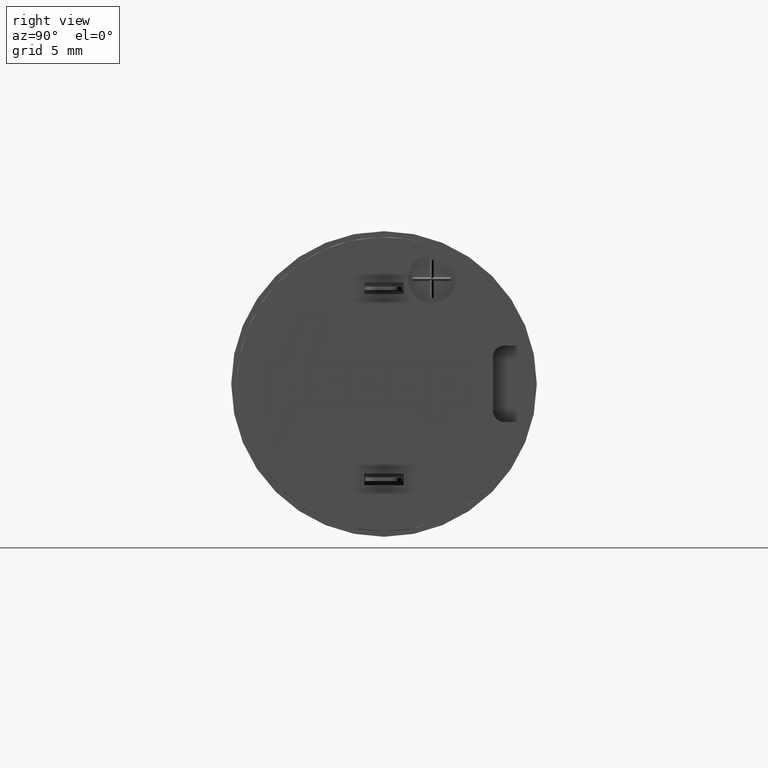
[diagram: clean part render]
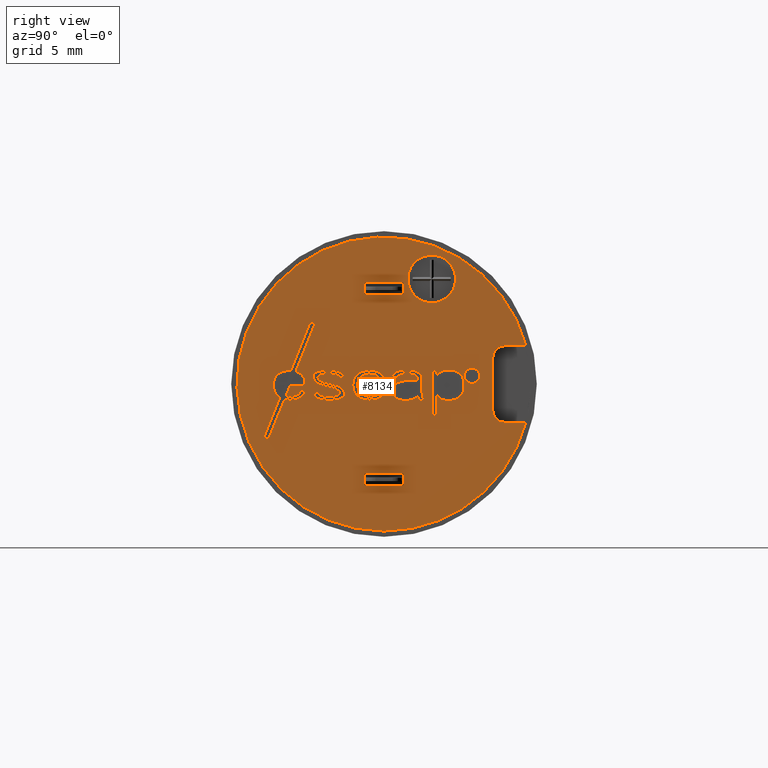
[diagram: same view with one face highlighted and labeled with its STEP entity id]
A machine part, right view. The second image highlights one B-rep face of the part: STEP entity #8134.
In plain terms, the highlighted planar face has unit normal (1, 0, 0).
Its self-contained STEP definition (entity closure, byte-faithful):
#9=CARTESIAN_POINT('',(1.7E0,1.203827803561E-14,0.E0));
#10=DIRECTION('',(-1.E0,0.E0,0.E0));
#11=DIRECTION('',(0.E0,9.656785166245E-1,-2.597402597402E-1));
#12=AXIS2_PLACEMENT_3D('',#9,#10,#11);
#14=CARTESIAN_POINT('',(1.7E0,1.203827803561E-14,0.E0));
#15=DIRECTION('',(-1.E0,0.E0,0.E0));
#16=DIRECTION('',(0.E0,4.590222619104E-14,-1.E0));
#17=AXIS2_PLACEMENT_3D('',#14,#15,#16);
#19=CARTESIAN_POINT('',(1.7E0,6.3E0,1.4E0));
#20=DIRECTION('',(1.E0,0.E0,0.E0));
#21=DIRECTION('',(0.E0,0.E0,1.E0));
#22=AXIS2_PLACEMENT_3D('',#19,#20,#21);
#24=CARTESIAN_POINT('',(1.7E0,6.3E0,-1.4E0));
#25=DIRECTION('',(1.E0,0.E0,0.E0));
#26=DIRECTION('',(0.E0,-1.E0,0.E0));
#27=AXIS2_PLACEMENT_3D('',#24,#25,#26);
#29=CARTESIAN_POINT('',(1.7E0,2.5E0,5.5E0));
#30=DIRECTION('',(1.E0,0.E0,0.E0));
#31=DIRECTION('',(0.E0,-1.E0,0.E0));
#32=AXIS2_PLACEMENT_3D('',#29,#30,#31);
#34=CARTESIAN_POINT('',(1.7E0,2.5E0,5.5E0));
#35=DIRECTION('',(1.E0,0.E0,0.E0));
#36=DIRECTION('',(0.E0,1.E0,0.E0));
#37=AXIS2_PLACEMENT_3D('',#34,#35,#36);
#39=DIRECTION('',(0.E0,4.674304052566E-1,8.840298729351E-1));
#40=VECTOR('',#39,1.111929173798E-1);
#41=CARTESIAN_POINT('',(1.7E0,-3.461125E0,3.295744651556E-1));
#42=LINE('',#41,#40);
#43=DIRECTION('',(0.E0,9.040423342969E-1,4.274429292887E-1));
#44=VECTOR('',#43,1.149836082045E-1);
#45=CARTESIAN_POINT('',(1.7E0,-3.409150049567E0,4.278723257781E-1));
#46=LINE('',#45,#44);
#47=DIRECTION('',(0.E0,9.731752787215E-1,2.300649405825E-1));
#48=VECTOR('',#47,2.136306826527E-1);
#49=CARTESIAN_POINT('',(1.7E0,-3.3052E0,4.770212560893E-1));
#50=LINE('',#49,#48);
#51=DIRECTION('',(0.E0,9.878071087943E-1,-1.556827409040E-1));
#52=VECTOR('',#51,3.156992870609E-1);
#53=CARTESIAN_POINT('',(1.7E0,-2.785449900866E0,5.261701864004E-1));
#54=LINE('',#53,#52);
#55=DIRECTION('',(0.E0,9.040420980112E-1,-4.274434290330E-1));
#56=VECTOR('',#55,1.149834737724E-1);
#57=CARTESIAN_POINT('',(1.7E0,-2.473599900866E0,4.770212560894E-1));
#58=LINE('',#57,#56);
#59=DIRECTION('',(0.E0,4.674314503923E-1,-8.840293203193E-1));
#60=VECTOR('',#59,1.111929868873E-1);
#61=CARTESIAN_POINT('',(1.7E0,-2.36965E0,4.278723257779E-1));
#62=LINE('',#61,#60);
#63=DIRECTION('',(0.E0,-4.674304052594E-1,8.840298729336E-1));
#64=VECTOR('',#63,2.223858347599E-1);
#65=CARTESIAN_POINT('',(1.7E0,-2.0578E0,3.295744651555E-1));
#66=LINE('',#65,#64);
#67=DIRECTION('',(0.E0,-8.459321688457E-1,5.332905078023E-1));
#68=VECTOR('',#67,1.843232894345E-1);
#69=CARTESIAN_POINT('',(1.7E0,-2.161749900866E0,5.261701864006E-1));
#70=LINE('',#69,#68);
#71=DIRECTION('',(0.E0,-9.537415646846E-1,3.006277229283E-1));
#72=VECTOR('',#71,1.634876844773E-1);
#73=CARTESIAN_POINT('',(1.7E0,-2.317674900866E0,6.244680470229E-1));
#74=LINE('',#73,#72);
#75=DIRECTION('',(0.E0,-9.878071087943E-1,1.556827409041E-1));
#76=VECTOR('',#75,3.156992870609E-1);
#77=CARTESIAN_POINT('',(1.7E0,-2.473599900866E0,6.736169773341E-1));
#78=LINE('',#77,#76);
#79=DIRECTION('',(0.E0,-9.878071202105E-1,-1.556826684687E-1));
#80=VECTOR('',#79,3.156994339488E-1);
#81=CARTESIAN_POINT('',(1.7E0,-3.097299900866E0,7.227659076452E-1));
#82=LINE('',#81,#80);
#83=DIRECTION('',(0.E0,-9.040422161547E-1,-4.274431791595E-1));
#84=VECTOR('',#83,2.299670819770E-1);
#85=CARTESIAN_POINT('',(1.7E0,-3.409150049567E0,6.736169773340E-1));
#86=LINE('',#85,#84);
#87=DIRECTION('',(0.E0,-5.762020026631E-1,-8.173073180432E-1));
#88=VECTOR('',#87,1.804055679894E-1);
#89=CARTESIAN_POINT('',(1.7E0,-3.61705E0,5.753191167117E-1));
#90=LINE('',#89,#88);
#91=DIRECTION('',(0.E0,4.674309278249E-1,-8.840295966272E-1));
#92=VECTOR('',#91,2.223859042672E-1);
#93=CARTESIAN_POINT('',(1.7E0,-3.721000049567E0,3.295744651556E-1));
#94=LINE('',#93,#92);
#95=DIRECTION('',(0.E0,8.156830988395E-1,-5.784989907231E-1));
#96=VECTOR('',#95,2.548783353841E-1);
#97=CARTESIAN_POINT('',(1.7E0,-3.61705E0,1.329787439107E-1));
#98=LINE('',#97,#96);
#99=DIRECTION('',(0.E0,9.634314964664E-1,-2.679547566595E-1));
#100=VECTOR('',#99,9.171124805527E-1);
#101=CARTESIAN_POINT('',(1.7E0,-3.409150049567E0,-1.446811586617E-2));
#102=LINE('',#101,#100);
#103=DIRECTION('',(0.E0,8.459321688448E-1,-5.332905078037E-1));
#104=VECTOR('',#103,1.843232894345E-1);
#105=CARTESIAN_POINT('',(1.7E0,-2.525575E0,-2.602127674221E-1));
#106=LINE('',#105,#104);
#107=DIRECTION('',(0.E0,4.674313224731E-1,-8.840293879566E-1));
#108=VECTOR('',#107,1.111930173171E-1);
#109=CARTESIAN_POINT('',(1.7E0,-2.36965E0,-3.585106280447E-1));
#110=LINE('',#109,#108);
#111=DIRECTION('',(0.E0,-4.674314503928E-1,-8.840293203190E-1));
#112=VECTOR('',#111,1.111929868875E-1);
#113=CARTESIAN_POINT('',(1.7E0,-2.317674900866E0,-4.568085230886E-1));
#114=LINE('',#113,#112);
#115=DIRECTION('',(0.E0,-9.040420980110E-1,-4.274434290334E-1));
#116=VECTOR('',#115,1.149834737725E-1);
#117=CARTESIAN_POINT('',(1.7E0,-2.36965E0,-5.551063837110E-1));
#118=LINE('',#117,#116);
#119=DIRECTION('',(0.E0,-9.731752606840E-1,-2.300650168812E-1));
#120=VECTOR('',#119,2.136306866123E-1);
#121=CARTESIAN_POINT('',(1.7E0,-2.473599900866E0,-6.042553140225E-1));
#122=LINE('',#121,#120);
#123=DIRECTION('',(0.E0,-9.878071004105E-1,1.556827940993E-1));
#124=VECTOR('',#123,3.156992897403E-1);
#125=CARTESIAN_POINT('',(1.7E0,-2.99335E0,-6.534042615443E-1));
#126=LINE('',#125,#124);
#127=DIRECTION('',(0.E0,-9.040423342970E-1,4.274429292886E-1));
#128=VECTOR('',#127,1.149836082045E-1);
#129=CARTESIAN_POINT('',(1.7E0,-3.3052E0,-6.042553140223E-1));
#130=LINE('',#129,#128);
#131=DIRECTION('',(0.E0,-4.674304052575E-1,8.840298729346E-1));
#132=VECTOR('',#131,1.111929173799E-1);
#133=CARTESIAN_POINT('',(1.7E0,-3.409150049567E0,-5.551063837112E-1));
#134=LINE('',#133,#132);
#135=DIRECTION('',(0.E0,4.674308958448E-1,-8.840296135366E-1));
#136=VECTOR('',#135,2.223859194822E-1);
#137=CARTESIAN_POINT('',(1.7E0,-3.721000049567E0,-4.568085230887E-1));
#138=LINE('',#137,#136);
#139=DIRECTION('',(0.E0,8.459321477841E-1,-5.332905412112E-1));
#140=VECTOR('',#139,1.843232940237E-1);
#141=CARTESIAN_POINT('',(1.7E0,-3.61705E0,-6.534042615445E-1));
#142=LINE('',#141,#140);
#143=DIRECTION('',(0.E0,9.537415571386E-1,-3.006277468679E-1));
#144=VECTOR('',#143,1.634876857708E-1);
#145=CARTESIAN_POINT('',(1.7E0,-3.461125E0,-7.517021307722E-1));
#146=LINE('',#145,#144);
#147=DIRECTION('',(0.E0,9.878071066983E-1,-1.556827542031E-1));
#148=VECTOR('',#147,3.156992877307E-1);
#149=CARTESIAN_POINT('',(1.7E0,-3.3052E0,-8.008510653861E-1));
#150=LINE('',#149,#148);
#151=DIRECTION('',(0.E0,9.878071066983E-1,1.556827542035E-1));
#152=VECTOR('',#151,3.156992877307E-1);
#153=CARTESIAN_POINT('',(1.7E0,-2.6815E0,-8.5E-1));
#154=LINE('',#153,#152);
#155=DIRECTION('',(0.E0,9.040423126069E-1,4.274429751633E-1));
#156=VECTOR('',#155,2.299672219264E-1);
#157=CARTESIAN_POINT('',(1.7E0,-2.36965E0,-8.008510653860E-1));
#158=LINE('',#157,#156);
#159=DIRECTION('',(0.E0,5.762014071349E-1,8.173077378906E-1));
#160=VECTOR('',#159,1.804054963744E-1);
#161=CARTESIAN_POINT('',(1.7E0,-2.161749900866E0,-7.025531918557E-1));
#162=LINE('',#161,#160);
#163=DIRECTION('',(0.E0,-4.674303413006E-1,8.840299067518E-1));
#164=VECTOR('',#163,2.223858651896E-1);
#165=CARTESIAN_POINT('',(1.7E0,-2.0578E0,-4.568085230885E-1));
#166=LINE('',#165,#164);
#167=DIRECTION('',(0.E0,-8.156834215416E-1,5.784985357131E-1));
#168=VECTOR('',#167,2.548784168511E-1);
#169=CARTESIAN_POINT('',(1.7E0,-2.161749900866E0,-2.602127674220E-1));
#170=LINE('',#169,#168);
#171=DIRECTION('',(0.E0,-9.634314654461E-1,2.679548681930E-1));
#172=VECTOR('',#171,9.171123557365E-1);
#173=CARTESIAN_POINT('',(1.7E0,-2.36965E0,-1.127659764887E-1));
#174=LINE('',#173,#172);
#175=DIRECTION('',(0.E0,-8.459323982818E-1,5.332901438591E-1));
#176=VECTOR('',#175,1.843234152255E-1);
#177=CARTESIAN_POINT('',(1.7E0,-3.253224900866E0,1.329787439108E-1));
#178=LINE('',#177,#176);
#179=DIRECTION('',(0.E0,-4.674304052563E-1,8.840298729353E-1));
#180=VECTOR('',#179,1.111929173798E-1);
#181=CARTESIAN_POINT('',(1.7E0,-3.409150049567E0,2.312766045330E-1));
#182=LINE('',#181,#180);
#183=DIRECTION('',(0.E0,1.735749921642E-1,-9.848206547871E-1));
#184=VECTOR('',#183,2.994388678121E-1);
#185=CARTESIAN_POINT('',(1.7E0,-1.642000099134E0,-6.361704617739E-2));
#186=LINE('',#185,#184);
#187=DIRECTION('',(0.E0,4.674303412997E-1,-8.840299067523E-1));
#188=VECTOR('',#187,2.223858651897E-1);
#189=CARTESIAN_POINT('',(1.7E0,-1.590025E0,-3.585106280448E-1));
#190=LINE('',#189,#188);
#191=DIRECTION('',(0.E0,7.265849230786E-1,-6.870766693425E-1));
#192=VECTOR('',#191,1.430668253174E-1);
#193=CARTESIAN_POINT('',(1.7E0,-1.486075099134E0,-5.551063837115E-1));
#194=LINE('',#193,#192);
#195=DIRECTION('',(0.E0,8.459321477829E-1,-5.332905412131E-1));
#196=VECTOR('',#195,1.843232940237E-1);
#197=CARTESIAN_POINT('',(1.7E0,-1.382124900866E0,-6.534042615440E-1));
#198=LINE('',#197,#196);
#199=DIRECTION('',(0.E0,9.537415571384E-1,-3.006277468685E-1));
#200=VECTOR('',#199,1.634876857708E-1);
#201=CARTESIAN_POINT('',(1.7E0,-1.226199900866E0,-7.517021307720E-1));
#202=LINE('',#201,#200);
#203=DIRECTION('',(0.E0,9.878070838658E-1,-1.556828990754E-1));
#204=VECTOR('',#203,3.156989939540E-1);
#205=CARTESIAN_POINT('',(1.7E0,-1.070274900866E0,-8.008510653861E-1));
#206=LINE('',#205,#204);
#207=DIRECTION('',(0.E0,9.909984515534E-1,1.338733319922E-1));
#208=VECTOR('',#207,3.671301362454E-1);
#209=CARTESIAN_POINT('',(1.7E0,-7.584251982689E-1,-8.5E-1));
#210=LINE('',#209,#208);
#211=DIRECTION('',(0.E0,9.040420763211E-1,4.274434749075E-1));
#212=VECTOR('',#211,2.299669530617E-1);
#213=CARTESIAN_POINT('',(1.7E0,-3.945998017311E-1,-8.008510653861E-1));
#214=LINE('',#213,#212);
#215=DIRECTION('',(0.E0,7.265842888721E-1,6.870773400165E-1));
#216=VECTOR('',#215,2.146000159762E-1);
#217=CARTESIAN_POINT('',(1.7E0,-1.867E-1,-7.025531918555E-1));
#218=LINE('',#217,#216);
#219=DIRECTION('',(0.E0,2.555926783861E-1,9.667845586041E-1));
#220=VECTOR('',#219,2.033501196485E-1);
#221=CARTESIAN_POINT('',(1.7E0,-3.077499999998E-2,-5.551063837111E-1));
#222=LINE('',#221,#220);
#223=DIRECTION('',(0.E0,-3.324523208313E-1,-9.431200636048E-1));
#224=VECTOR('',#223,1.563394005125E-1);
#225=CARTESIAN_POINT('',(1.7E0,-2.386748017311E-1,-3.585106280446E-1));
#226=LINE('',#225,#224);
#227=DIRECTION('',(0.E0,-8.459321688454E-1,-5.332905078027E-1));
#228=VECTOR('',#227,1.843232894345E-1);
#229=CARTESIAN_POINT('',(1.7E0,-2.906501982689E-1,-5.059574533999E-1));
#230=LINE('',#229,#228);
#231=DIRECTION('',(0.E0,-9.909984178523E-1,-1.338735814648E-1));
#232=VECTOR('',#231,3.671295485210E-1);
#233=CARTESIAN_POINT('',(1.7E0,-4.465751982689E-1,-6.042553140223E-1));
#234=LINE('',#233,#232);
#235=DIRECTION('',(0.E0,-9.537415495927E-1,3.006277708072E-1));
#236=VECTOR('',#235,3.269753741285E-1);
#237=CARTESIAN_POINT('',(1.7E0,-8.104E-1,-6.534042615443E-1));
#238=LINE('',#237,#236);
#239=DIRECTION('',(0.E0,-7.265842488347E-1,6.870773823561E-1));
#240=VECTOR('',#239,2.146000278015E-1);
#241=CARTESIAN_POINT('',(1.7E0,-1.12225E0,-5.551063837112E-1));
#242=LINE('',#241,#240);
#243=DIRECTION('',(0.E0,-3.895796243963E-1,9.209927883840E-1));
#244=VECTOR('',#243,2.668258152025E-1);
#245=CARTESIAN_POINT('',(1.7E0,-1.278175E0,-4.076595583558E-1));
#246=LINE('',#245,#244);
#247=DIRECTION('',(0.E0,2.555926365598E-1,9.667845696619E-1));
#248=VECTOR('',#247,2.033501529273E-1);
#249=CARTESIAN_POINT('',(1.7E0,-1.382124900866E0,-1.446811586628E-2));
#250=LINE('',#249,#248);
#251=DIRECTION('',(0.E0,4.674314503942E-1,8.840293203183E-1));
#252=VECTOR('',#251,1.111929868872E-1);
#253=CARTESIAN_POINT('',(1.7E0,-1.330150099134E0,1.821276742222E-1));
#254=LINE('',#253,#252);
#255=DIRECTION('',(0.E0,7.265843289088E-1,6.870772976778E-1));
#256=VECTOR('',#255,2.146000041511E-1);
#257=CARTESIAN_POINT('',(1.7E0,-1.278175E0,2.804255348443E-1));
#258=LINE('',#257,#256);
#259=DIRECTION('',(0.E0,9.040420980116E-1,4.274434290321E-1));
#260=VECTOR('',#259,1.149834737725E-1);
#261=CARTESIAN_POINT('',(1.7E0,-1.12225E0,4.278723257781E-1));
#262=LINE('',#261,#260);
#263=DIRECTION('',(0.E0,9.731752787217E-1,2.300649405821E-1));
#264=VECTOR('',#263,2.136306826527E-1);
#265=CARTESIAN_POINT('',(1.7E0,-1.018300099134E0,4.770212560894E-1));
#266=LINE('',#265,#264);
#267=DIRECTION('',(0.E0,9.909984240718E-1,-1.338735354254E-1));
#268=VECTOR('',#267,3.671295462169E-1);
#269=CARTESIAN_POINT('',(1.7E0,-8.104E-1,5.261701864004E-1));
#270=LINE('',#269,#268);
#271=DIRECTION('',(0.E0,8.459321688453E-1,-5.332905078028E-1));
#272=VECTOR('',#271,1.843232894345E-1);
#273=CARTESIAN_POINT('',(1.7E0,-4.465751982689E-1,4.770212560892E-1));
#274=LINE('',#273,#272);
#275=DIRECTION('',(0.E0,3.324523898648E-1,-9.431200392703E-1));
#276=VECTOR('',#275,1.563393680487E-1);
#277=CARTESIAN_POINT('',(1.7E0,-2.906501982689E-1,3.787233954668E-1));
#278=LINE('',#277,#276);
#279=DIRECTION('',(0.E0,-2.555927202141E-1,9.667845475459E-1));
#280=VECTOR('',#279,2.033500863702E-1);
#281=CARTESIAN_POINT('',(1.7E0,2.119980173112E-2,2.312766045332E-1));
#282=LINE('',#281,#280);
#283=DIRECTION('',(0.E0,-7.265843289092E-1,6.870772976773E-1));
#284=VECTOR('',#283,2.146000041510E-1);
#285=CARTESIAN_POINT('',(1.7E0,-3.077499999999E-2,4.278723257780E-1));
#286=LINE('',#285,#284);
#287=DIRECTION('',(0.E0,-9.040420980115E-1,4.274434290325E-1));
#288=VECTOR('',#287,2.299669475442E-1);
#289=CARTESIAN_POINT('',(1.7E0,-1.867E-1,5.753191167116E-1));
#290=LINE('',#289,#288);
#291=DIRECTION('',(0.E0,-9.909984531083E-1,1.338733204822E-1));
#292=VECTOR('',#291,3.671301356694E-1);
#293=CARTESIAN_POINT('',(1.7E0,-3.945998017311E-1,6.736169773340E-1));
#294=LINE('',#293,#292);
#295=DIRECTION('',(0.E0,-9.878070859618E-1,-1.556828857765E-1));
#296=VECTOR('',#295,3.156989932842E-1);
#297=CARTESIAN_POINT('',(1.7E0,-7.584251982689E-1,7.227659076452E-1));
#298=LINE('',#297,#296);
#299=DIRECTION('',(0.E0,-9.537415646842E-1,-3.006277229293E-1));
#300=VECTOR('',#299,1.634876844773E-1);
#301=CARTESIAN_POINT('',(1.7E0,-1.070274900866E0,6.736169773340E-1));
#302=LINE('',#301,#300);
#303=DIRECTION('',(0.E0,-8.459321688458E-1,-5.332905078021E-1));
#304=VECTOR('',#303,1.843232894344E-1);
#305=CARTESIAN_POINT('',(1.7E0,-1.226199900866E0,6.244680470226E-1));
#306=LINE('',#305,#304);
#307=DIRECTION('',(0.E0,-7.265849831311E-1,-6.870766058369E-1));
#308=VECTOR('',#307,1.430668134924E-1);
#309=CARTESIAN_POINT('',(1.7E0,-1.382124900866E0,5.261701864003E-1));
#310=LINE('',#309,#308);
#311=DIRECTION('',(0.E0,-4.674304052594E-1,-8.840298729336E-1));
#312=VECTOR('',#311,2.223858347599E-1);
#313=CARTESIAN_POINT('',(1.7E0,-1.486075099134E0,4.278723257781E-1));
#314=LINE('',#313,#312);
#315=DIRECTION('',(0.E0,-1.735749528647E-1,-9.848206617136E-1));
#316=VECTOR('',#315,2.994389356102E-1);
#317=CARTESIAN_POINT('',(1.7E0,-1.590025E0,2.312766045330E-1));
#318=LINE('',#317,#316);
#319=DIRECTION('',(0.E0,-3.324523553495E-1,9.431200514370E-1));
#320=VECTOR('',#319,1.563393842807E-1);
#321=CARTESIAN_POINT('',(1.7E0,2.100200198269E0,-8.5E-1));
#322=LINE('',#321,#320);
#323=DIRECTION('',(0.E0,-2.069218276919E-1,9.783574792603E-1));
#324=VECTOR('',#323,2.511808556445E-1);
#325=CARTESIAN_POINT('',(1.7E0,2.048224801731E0,-7.025531918555E-1));
#326=LINE('',#325,#324);
#327=DIRECTION('',(0.E0,-3.324490057696E-1,9.431212321662E-1));
#328=VECTOR('',#327,1.563391703048E-1);
#329=CARTESIAN_POINT('',(1.7E0,1.99625E0,3.295744651555E-1));
#330=LINE('',#329,#328);
#331=DIRECTION('',(0.E0,-7.265849831342E-1,6.870766058337E-1));
#332=VECTOR('',#331,1.430668134933E-1);
#333=CARTESIAN_POINT('',(1.7E0,1.944275198269E0,4.770212560892E-1));
#334=LINE('',#333,#332);
#335=DIRECTION('',(0.E0,-8.459321688453E-1,5.332905078030E-1));
#336=VECTOR('',#335,1.843232894345E-1);
#337=CARTESIAN_POINT('',(1.7E0,1.840325E0,5.753191167116E-1));
#338=LINE('',#337,#336);
#339=DIRECTION('',(0.E0,-9.878071087943E-1,1.556827409042E-1));
#340=VECTOR('',#339,3.156992870608E-1);
#341=CARTESIAN_POINT('',(1.7E0,1.6844E0,6.736169773341E-1));
#342=LINE('',#341,#340);
#343=DIRECTION('',(0.E0,-9.909984240718E-1,-1.338735354254E-1));
#344=VECTOR('',#343,3.671295462169E-1);
#345=CARTESIAN_POINT('',(1.7E0,1.0607E0,7.227659076452E-1));
#346=LINE('',#345,#344);
#347=DIRECTION('',(0.E0,-9.040425705817E-1,-4.274424295459E-1));
#348=VECTOR('',#347,1.149837426373E-1);
#349=CARTESIAN_POINT('',(1.7E0,6.968751982689E-1,6.736169773340E-1));
#350=LINE('',#349,#348);
#351=DIRECTION('',(0.E0,-7.265849831334E-1,-6.870766058345E-1));
#352=VECTOR('',#351,1.430668134931E-1);
#353=CARTESIAN_POINT('',(1.7E0,5.92925E-1,6.244680470228E-1));
#354=LINE('',#353,#352);
#355=DIRECTION('',(0.E0,-4.674293601225E-1,-8.840304255485E-1));
#356=VECTOR('',#355,1.111928478722E-1);
#357=CARTESIAN_POINT('',(1.7E0,4.889748017311E-1,5.261701864004E-1));
#358=LINE('',#357,#356);
#359=DIRECTION('',(0.E0,4.674293601226E-1,8.840304255485E-1));
#360=VECTOR('',#359,1.111928478722E-1);
#361=CARTESIAN_POINT('',(1.7E0,6.968751982689E-1,3.295744651556E-1));
#362=LINE('',#361,#360);
#363=DIRECTION('',(0.E0,9.040425705815E-1,4.274424295463E-1));
#364=VECTOR('',#363,1.149837426373E-1);
#365=CARTESIAN_POINT('',(1.7E0,7.4885E-1,4.278723257780E-1));
#366=LINE('',#365,#364);
#367=DIRECTION('',(0.E0,9.731752050358E-1,2.300652522733E-1));
#368=VECTOR('',#367,2.136303932276E-1);
#369=CARTESIAN_POINT('',(1.7E0,8.528001982689E-1,4.770212560892E-1));
#370=LINE('',#369,#368);
#371=DIRECTION('',(0.E0,9.731752050359E-1,-2.300652522729E-1));
#372=VECTOR('',#371,2.136303932275E-1);
#373=CARTESIAN_POINT('',(1.7E0,1.37255E0,5.261701864004E-1));
#374=LINE('',#373,#372);
#375=DIRECTION('',(0.E0,9.040425705805E-1,-4.274424295483E-1));
#376=VECTOR('',#375,1.149837426374E-1);
#377=CARTESIAN_POINT('',(1.7E0,1.580449801731E0,4.770212560894E-1));
#378=LINE('',#377,#376);
#379=DIRECTION('',(0.E0,4.674293601239E-1,-8.840304255477E-1));
#380=VECTOR('',#379,1.111928478721E-1);
#381=CARTESIAN_POINT('',(1.7E0,1.6844E0,4.278723257779E-1));
#382=LINE('',#381,#380);
#383=DIRECTION('',(0.E0,-9.878071087942E-1,-1.556827409046E-1));
#384=VECTOR('',#383,3.156992870610E-1);
#385=CARTESIAN_POINT('',(1.7E0,1.164650198269E0,1.821276742220E-1));
#386=LINE('',#385,#384);
#387=DIRECTION('',(0.E0,-9.040425705816E-1,-4.274424295461E-1));
#388=VECTOR('',#387,2.299674852746E-1);
#389=CARTESIAN_POINT('',(1.7E0,8.528001982689E-1,1.329787439108E-1));
#390=LINE('',#389,#388);
#391=DIRECTION('',(0.E0,-7.265827802308E-1,-6.870789354012E-1));
#392=VECTOR('',#391,1.430664286169E-1);
#393=CARTESIAN_POINT('',(1.7E0,6.448998017311E-1,3.468088328838E-2));
#394=LINE('',#393,#392);
#395=DIRECTION('',(0.E0,-4.674314503937E-1,-8.840293203185E-1));
#396=VECTOR('',#395,2.223859737751E-1);
#397=CARTESIAN_POINT('',(1.7E0,5.409501982689E-1,-6.361704617740E-2));
#398=LINE('',#397,#396);
#399=DIRECTION('',(0.E0,2.555926783861E-1,-9.667845586042E-1));
#400=VECTOR('',#399,2.033501196485E-1);
#401=CARTESIAN_POINT('',(1.7E0,4.37E-1,-4.076595583558E-1));
#402=LINE('',#401,#400);
#403=DIRECTION('',(0.E0,7.265842688534E-1,-6.870773611863E-1));
#404=VECTOR('',#403,2.146000218888E-1);
#405=CARTESIAN_POINT('',(1.7E0,4.889748017311E-1,-6.042553140223E-1));
#406=LINE('',#405,#404);
#407=DIRECTION('',(0.E0,9.040425561214E-1,-4.274424601294E-1));
#408=VECTOR('',#407,1.149837444764E-1);
#409=CARTESIAN_POINT('',(1.7E0,6.448998017311E-1,-7.517021307722E-1));
#410=LINE('',#409,#408);
#411=DIRECTION('',(0.E0,9.731752005263E-1,-2.300652713484E-1));
#412=VECTOR('',#411,2.136303942175E-1);
#413=CARTESIAN_POINT('',(1.7E0,7.4885E-1,-8.008510653861E-1));
#414=LINE('',#413,#412);
#415=DIRECTION('',(0.E0,9.825817377978E-1,1.858309138603E-1));
#416=VECTOR('',#415,2.644820153603E-1);
#417=CARTESIAN_POINT('',(1.7E0,1.268599801731E0,-8.500000000001E-1));
#418=LINE('',#417,#416);
#419=DIRECTION('',(0.E0,8.459321372536E-1,5.332905579152E-1));
#420=VECTOR('',#419,1.843232963183E-1);
#421=CARTESIAN_POINT('',(1.7E0,1.528475E0,-8.008510653860E-1));
#422=LINE('',#421,#420);
#423=DIRECTION('',(0.E0,4.674292961621E-1,8.840304593674E-1));
#424=VECTOR('',#423,1.111928630874E-1);
#425=CARTESIAN_POINT('',(1.7E0,1.6844E0,-7.025531918557E-1));
#426=LINE('',#425,#424);
#427=DIRECTION('',(0.E0,3.324523380868E-1,-9.431200575222E-1));
#428=VECTOR('',#427,1.563393923967E-1);
#429=CARTESIAN_POINT('',(1.7E0,1.736374801731E0,-6.042553140222E-1));
#430=LINE('',#429,#428);
#431=DIRECTION('',(0.E0,4.674293281454E-1,-8.840304424563E-1));
#432=VECTOR('',#431,1.111928554796E-1);
#433=CARTESIAN_POINT('',(1.7E0,1.788350198269E0,-7.517021307723E-1));
#434=LINE('',#433,#432);
#435=DIRECTION('',(0.E0,4.674292961625E-1,-8.840304593672E-1));
#436=VECTOR('',#435,1.111928630869E-1);
#437=CARTESIAN_POINT('',(1.7E0,2.775875E0,-5.551063837112E-1));
#438=LINE('',#437,#436);
#439=DIRECTION('',(0.E0,7.265849531071E-1,-6.870766375874E-1));
#440=VECTOR('',#439,1.430668194059E-1);
#441=CARTESIAN_POINT('',(1.7E0,2.827849801731E0,-6.534042615442E-1));
#442=LINE('',#441,#440);
#443=DIRECTION('',(0.E0,9.040425561199E-1,-4.274424601327E-1));
#444=VECTOR('',#443,1.149837444766E-1);
#445=CARTESIAN_POINT('',(1.7E0,2.9318E0,-7.517021307719E-1));
#446=LINE('',#445,#444);
#447=DIRECTION('',(0.E0,9.731752005265E-1,-2.300652713474E-1));
#448=VECTOR('',#447,2.136303942174E-1);
#449=CARTESIAN_POINT('',(1.7E0,3.035750198269E0,-8.008510653863E-1));
#450=LINE('',#449,#448);
#451=DIRECTION('',(0.E0,9.731752005264E-1,2.300652713481E-1));
#452=VECTOR('',#451,2.136303942174E-1);
#453=CARTESIAN_POINT('',(1.7E0,3.5555E0,-8.499999999999E-1));
#454=LINE('',#453,#452);
#455=DIRECTION('',(0.E0,8.459321372526E-1,5.332905579169E-1));
#456=VECTOR('',#455,1.843232963183E-1);
#457=CARTESIAN_POINT('',(1.7E0,3.763399801731E0,-8.008510653861E-1));
#458=LINE('',#457,#456);
#459=DIRECTION('',(0.E0,6.458745286725E-1,7.634435756571E-1));
#460=VECTOR('',#459,3.218897592467E-1);
#461=CARTESIAN_POINT('',(1.7E0,3.919324801731E0,-7.025531918555E-1));
#462=LINE('',#461,#460);
#463=DIRECTION('',(0.E0,2.555926783849E-1,9.667845586045E-1));
#464=VECTOR('',#463,2.033501196485E-1);
#465=CARTESIAN_POINT('',(1.7E0,4.127225198269E0,-4.568085230887E-1));
#466=LINE('',#465,#464);
#467=DIRECTION('',(0.E0,-2.555927202114E-1,9.667845475466E-1));
#468=VECTOR('',#467,2.033500863701E-1);
#469=CARTESIAN_POINT('',(1.7E0,4.1792E0,1.329787439108E-1));
#470=LINE('',#469,#468);
#471=DIRECTION('',(0.E0,-4.674335406608E-1,8.840282150844E-1));
#472=VECTOR('',#471,1.111931259037E-1);
#473=CARTESIAN_POINT('',(1.7E0,4.127225198269E0,3.295744651557E-1));
#474=LINE('',#473,#472);
#475=DIRECTION('',(0.E0,-7.265843289088E-1,6.870772976778E-1));
#476=VECTOR('',#475,2.146000041511E-1);
#477=CARTESIAN_POINT('',(1.7E0,4.075249801731E0,4.278723257780E-1));
#478=LINE('',#477,#476);
#479=DIRECTION('',(0.E0,-8.459321688452E-1,5.332905078031E-1));
#480=VECTOR('',#479,1.843232894345E-1);
#481=CARTESIAN_POINT('',(1.7E0,3.919324801731E0,5.753191167117E-1));
#482=LINE('',#481,#480);
#483=DIRECTION('',(0.E0,-9.731752050359E-1,2.300652522729E-1));
#484=VECTOR('',#483,2.136303932275E-1);
#485=CARTESIAN_POINT('',(1.7E0,3.763399801731E0,6.736169773342E-1));
#486=LINE('',#485,#484);
#487=DIRECTION('',(0.E0,-9.731752050360E-1,-2.300652522726E-1));
#488=VECTOR('',#487,2.136303932275E-1);
#489=CARTESIAN_POINT('',(1.7E0,3.24365E0,7.227659076451E-1));
#490=LINE('',#489,#488);
#491=DIRECTION('',(0.E0,-9.040425705812E-1,-4.274424295468E-1));
#492=VECTOR('',#491,1.149837426375E-1);
#493=CARTESIAN_POINT('',(1.7E0,3.035750198269E0,6.736169773342E-1));
#494=LINE('',#493,#492);
#495=DIRECTION('',(0.E0,-7.265849831328E-1,-6.870766058351E-1));
#496=VECTOR('',#495,1.430668134932E-1);
#497=CARTESIAN_POINT('',(1.7E0,2.9318E0,6.244680470228E-1));
#498=LINE('',#497,#496);
#499=DIRECTION('',(0.E0,-4.674293601242E-1,-8.840304255476E-1));
#500=VECTOR('',#499,1.111928478721E-1);
#501=CARTESIAN_POINT('',(1.7E0,2.827849801731E0,5.261701864003E-1));
#502=LINE('',#501,#500);
#503=CARTESIAN_POINT('',(1.7E0,4.604404970724E0,4.313253187082E-1));
#504=DIRECTION('',(1.E0,0.E0,0.E0));
#505=DIRECTION('',(0.E0,1.E0,0.E0));
#506=AXIS2_PLACEMENT_3D('',#503,#504,#505);
#508=CARTESIAN_POINT('',(1.7E0,4.604404970724E0,4.313253187082E-1));
#509=DIRECTION('',(1.E0,0.E0,0.E0));
#510=DIRECTION('',(0.E0,-1.E0,0.E0));
#511=AXIS2_PLACEMENT_3D('',#508,#509,#510);
#513=DIRECTION('',(0.E0,8.459321764638E-1,-5.332904957181E-1));
#514=VECTOR('',#513,1.040950686592E-1);
#515=CARTESIAN_POINT('',(1.7E0,-5.540125006196E0,-6.534042615442E-1));
#516=LINE('',#515,#514);
#517=DIRECTION('',(0.E0,-3.729695624396E-1,-9.278435781389E-1));
#518=VECTOR('',#517,2.339691661414E0);
#519=CARTESIAN_POINT('',(1.7E0,-5.452067638206E0,-7.089171723113E-1));
#520=LINE('',#519,#518);
#521=DIRECTION('',(0.E0,3.729695624396E-1,9.278435781389E-1));
#522=VECTOR('',#521,2.236952867758E0);
#523=CARTESIAN_POINT('',(1.7E0,-6.041070386003E0,-2.879785055179E0));
#524=LINE('',#523,#522);
#525=DIRECTION('',(0.E0,9.878071038442E-1,-1.556827723127E-1));
#526=VECTOR('',#525,2.939136880096E-1);
#527=CARTESIAN_POINT('',(1.7E0,-5.206755053717E0,-8.042427022301E-1));
#528=LINE('',#527,#526);
#529=DIRECTION('',(0.E0,9.909984334056E-1,1.338734663315E-1));
#530=VECTOR('',#529,3.671297678380E-1);
#531=CARTESIAN_POINT('',(1.7E0,-4.916425024784E0,-8.5E-1));
#532=LINE('',#531,#530);
#533=DIRECTION('',(0.E0,9.040421944642E-1,4.274432250351E-1));
#534=VECTOR('',#533,2.299670874944E-1);
#535=CARTESIAN_POINT('',(1.7E0,-4.5526E0,-8.008510653861E-1));
#536=LINE('',#535,#534);
#537=DIRECTION('',(0.E0,7.265842888715E-1,6.870773400172E-1));
#538=VECTOR('',#537,2.146000159762E-1);
#539=CARTESIAN_POINT('',(1.7E0,-4.344700049567E0,-7.025531918555E-1));
#540=LINE('',#539,#538);
#541=DIRECTION('',(0.E0,2.555940453604E-1,9.667841972107E-1));
#542=VECTOR('',#541,2.033501956626E-1);
#543=CARTESIAN_POINT('',(1.7E0,-4.188775049567E0,-5.551063837109E-1));
#544=LINE('',#543,#542);
#545=DIRECTION('',(0.E0,-3.324497827658E-1,-9.431209582757E-1));
#546=VECTOR('',#545,1.563392522045E-1);
#547=CARTESIAN_POINT('',(1.7E0,-4.396675E0,-3.585106280446E-1));
#548=LINE('',#547,#546);
#549=DIRECTION('',(0.E0,-8.459322835635E-1,-5.332903258311E-1));
#550=VECTOR('',#549,1.843233523303E-1);
#551=CARTESIAN_POINT('',(1.7E0,-4.448649950433E0,-5.059574533999E-1));
#552=LINE('',#551,#550);
#553=DIRECTION('',(0.E0,-9.909984251115E-1,-1.338735277290E-1));
#554=VECTOR('',#553,3.671296958833E-1);
#555=CARTESIAN_POINT('',(1.7E0,-4.604575024784E0,-6.042553140224E-1));
#556=LINE('',#555,#554);
#557=DIRECTION('',(0.E0,-9.731752422624E-1,2.300650948046E-1));
#558=VECTOR('',#557,1.667723229690E-1);
#559=CARTESIAN_POINT('',(1.7E0,-4.968399975216E0,-6.534042615444E-1));
#560=LINE('',#559,#558);
#561=DIRECTION('',(0.E0,3.729695624396E-1,9.278435781389E-1));
#562=VECTOR('',#561,5.943013866393E-1);
#563=CARTESIAN_POINT('',(1.7E0,-5.130698671024E0,-6.150357712497E-1));
#564=LINE('',#563,#562);
#565=DIRECTION('',(0.E0,-2.555940871869E-1,9.667841861528E-1));
#566=VECTOR('',#565,2.033501623843E-1);
#567=CARTESIAN_POINT('',(1.7E0,-4.136799950433E0,1.329787439109E-1));
#568=LINE('',#567,#566);
#569=DIRECTION('',(0.E0,-6.214051219296E-1,7.834894220343E-1));
#570=VECTOR('',#569,2.509232616494E-1);
#571=CARTESIAN_POINT('',(1.7E0,-4.188775049567E0,3.295744651556E-1));
#572=LINE('',#571,#570);
#573=DIRECTION('',(0.E0,-8.697574792923E-1,4.934794091095E-1));
#574=VECTOR('',#573,2.987901586409E-1);
#575=CARTESIAN_POINT('',(1.7E0,-4.344700049567E0,5.261701864003E-1));
#576=LINE('',#575,#574);
#577=DIRECTION('',(0.E0,3.729382611521E-1,9.278561598485E-1));
#578=VECTOR('',#577,2.736876754969E0);
#579=CARTESIAN_POINT('',(1.7E0,-4.612215752771E0,6.745566383569E-1));
#580=LINE('',#579,#578);
#581=DIRECTION('',(0.E0,-3.729695624395E-1,-9.278435781389E-1));
#582=VECTOR('',#581,2.691322360424E0);
#583=CARTESIAN_POINT('',(1.7E0,-3.875160722189E0,3.213984594201E0));
#584=LINE('',#583,#582);
#585=DIRECTION('',(0.E0,-9.878071059401E-1,-1.556827590138E-1));
#586=VECTOR('',#585,3.156992503381E-1);
#587=CARTESIAN_POINT('',(1.7E0,-4.916425024784E0,7.227659076452E-1));
#588=LINE('',#587,#586);
#589=DIRECTION('',(0.E0,-9.537415646846E-1,-3.006277229282E-1));
#590=VECTOR('',#589,1.634876844773E-1);
#591=CARTESIAN_POINT('',(1.7E0,-5.228274987608E0,6.736169773340E-1));
#592=LINE('',#591,#590);
#593=DIRECTION('',(0.E0,-8.459321975252E-1,-5.332904623094E-1));
#594=VECTOR('',#593,1.843233051587E-1);
#595=CARTESIAN_POINT('',(1.7E0,-5.384199987608E0,6.244680470228E-1));
#596=LINE('',#595,#594);
#597=DIRECTION('',(0.E0,-7.265843084647E-1,-6.870773192974E-1));
#598=VECTOR('',#597,1.430666649320E-1);
#599=CARTESIAN_POINT('',(1.7E0,-5.540125006196E0,5.261701864003E-1));
#600=LINE('',#599,#598);
#601=DIRECTION('',(0.E0,-4.674307481940E-1,-8.840296916070E-1));
#602=VECTOR('',#601,2.223858803740E-1);
#603=CARTESIAN_POINT('',(1.7E0,-5.644075E0,4.278723257780E-1));
#604=LINE('',#603,#602);
#605=DIRECTION('',(0.E0,-1.735746367891E-1,-9.848207174220E-1));
#606=VECTOR('',#605,2.994389186720E-1);
#607=CARTESIAN_POINT('',(1.7E0,-5.748024998451E0,2.312766045332E-1));
#608=LINE('',#607,#606);
#609=DIRECTION('',(0.E0,1.735746760896E-1,-9.848207104953E-1));
#610=VECTOR('',#609,2.994388508736E-1);
#611=CARTESIAN_POINT('',(1.7E0,-5.8E0,-6.361704617739E-2));
#612=LINE('',#611,#610);
#613=DIRECTION('',(0.E0,4.674306842339E-1,-8.840297254259E-1));
#614=VECTOR('',#613,2.223859108038E-1);
#615=CARTESIAN_POINT('',(1.7E0,-5.748024998451E0,-3.585106280446E-1));
#616=LINE('',#615,#614);
#617=DIRECTION('',(0.E0,7.265842484088E-1,-6.870773828065E-1));
#618=VECTOR('',#617,1.430666767572E-1);
#619=CARTESIAN_POINT('',(1.7E0,-5.644075E0,-5.551063837111E-1));
#620=LINE('',#619,#618);
#621=DIRECTION('',(0.E0,-1.E0,-1.360744039710E-13));
#622=VECTOR('',#621,1.135724578009E0);
#623=CARTESIAN_POINT('',(1.7E0,7.435724578009E0,-2.E0));
#624=LINE('',#623,#622);
#2153=DIRECTION('',(0.E0,0.E0,1.E0));
#2154=VECTOR('',#2153,2.8E0);
#2155=CARTESIAN_POINT('',(1.7E0,5.7E0,-1.4E0));
#2156=LINE('',#2155,#2154);
#2173=DIRECTION('',(0.E0,1.E0,0.E0));
#2174=VECTOR('',#2173,1.135724578009E0);
#2175=CARTESIAN_POINT('',(1.7E0,6.3E0,2.E0));
#2176=LINE('',#2175,#2174);
#2223=DIRECTION('',(0.E0,0.E0,1.E0));
#2224=VECTOR('',#2223,6.E-1);
#2225=CARTESIAN_POINT('',(1.7E0,-1.025E0,4.7E0));
#2226=LINE('',#2225,#2224);
#2292=DIRECTION('',(0.E0,0.E0,-1.E0));
#2293=VECTOR('',#2292,6.E-1);
#2294=CARTESIAN_POINT('',(1.7E0,1.025E0,5.3E0));
#2295=LINE('',#2294,#2293);
#2958=DIRECTION('',(0.E0,0.E0,1.E0));
#2959=VECTOR('',#2958,6.E-1);
#2960=CARTESIAN_POINT('',(1.7E0,-1.025E0,-5.3E0));
#2961=LINE('',#2960,#2959);
#2978=DIRECTION('',(0.E0,-1.E0,0.E0));
#2979=VECTOR('',#2978,2.05E0);
#2980=CARTESIAN_POINT('',(1.7E0,1.025E0,-5.3E0));
#2981=LINE('',#2980,#2979);
#2990=DIRECTION('',(0.E0,0.E0,-1.E0));
#2991=VECTOR('',#2990,6.E-1);
#2992=CARTESIAN_POINT('',(1.7E0,1.025E0,-4.7E0));
#2993=LINE('',#2992,#2991);
#3018=DIRECTION('',(0.E0,1.E0,0.E0));
#3019=VECTOR('',#3018,2.05E0);
#3020=CARTESIAN_POINT('',(1.7E0,-1.025E0,-4.7E0));
#3021=LINE('',#3020,#3019);
#3255=DIRECTION('',(0.E0,1.E0,0.E0));
#3256=VECTOR('',#3255,2.05E0);
#3257=CARTESIAN_POINT('',(1.7E0,-1.025E0,5.3E0));
#3258=LINE('',#3257,#3256);
#3271=DIRECTION('',(0.E0,-1.E0,0.E0));
#3272=VECTOR('',#3271,2.05E0);
#3273=CARTESIAN_POINT('',(1.7E0,1.025E0,4.7E0));
#3274=LINE('',#3273,#3272);
#3727=DIRECTION('',(0.E0,-2.692603556117E-12,-1.E0));
#3728=VECTOR('',#3727,9.829786062243E-2);
#3729=CARTESIAN_POINT('',(1.7E0,-2.0578E0,-4.568085230885E-1));
#3730=LINE('',#3729,#3728);
#3747=DIRECTION('',(0.E0,-1.E0,0.E0));
#3748=VECTOR('',#3747,3.1185E-1);
#3749=CARTESIAN_POINT('',(1.7E0,-2.6815E0,-8.5E-1));
#3750=LINE('',#3749,#3748);
#3771=DIRECTION('',(0.E0,1.E0,2.076260844843E-13));
#3772=VECTOR('',#3771,2.598750495671E-1);
#3773=CARTESIAN_POINT('',(1.7E0,-3.721000049567E0,-4.568085230887E-1));
#3774=LINE('',#3773,#3772);
#3791=DIRECTION('',(0.E0,1.E0,-2.705690231570E-14));
#3792=VECTOR('',#3791,3.1185E-1);
#3793=CARTESIAN_POINT('',(1.7E0,-2.99335E0,-6.534042615443E-1));
#3794=LINE('',#3793,#3792);
#3831=DIRECTION('',(0.E0,-2.633872270493E-12,1.E0));
#3832=VECTOR('',#3831,9.829786062258E-2);
#3833=CARTESIAN_POINT('',(1.7E0,-3.721000049567E0,3.295744651556E-1));
#3834=LINE('',#3833,#3832);
#3851=DIRECTION('',(0.E0,1.E0,2.054188504758E-13));
#3852=VECTOR('',#3851,3.1185E-1);
#3853=CARTESIAN_POINT('',(1.7E0,-3.097299900866E0,7.227659076452E-1));
#3854=LINE('',#3853,#3852);
#3875=DIRECTION('',(0.E0,-1.E0,4.205925867031E-13));
#3876=VECTOR('',#3875,2.598749008658E-1);
#3877=CARTESIAN_POINT('',(1.7E0,-2.0578E0,3.295744651555E-1));
#3878=LINE('',#3877,#3876);
#3895=DIRECTION('',(0.E0,-1.E0,-1.740898056892E-13));
#3896=VECTOR('',#3895,3.1185E-1);
#3897=CARTESIAN_POINT('',(1.7E0,-2.785449900866E0,5.261701864004E-1));
#3898=LINE('',#3897,#3896);
#4131=DIRECTION('',(0.E0,-1.E0,-1.997229652676E-14));
#4132=VECTOR('',#4131,2.598746034622E-1);
#4133=CARTESIAN_POINT('',(1.7E0,2.119980173112E-2,2.312766045332E-1));
#4134=LINE('',#4133,#4132);
#4171=DIRECTION('',(0.E0,-6.279729770150E-13,-1.E0));
#4172=VECTOR('',#4171,1.474467909334E-1);
#4173=CARTESIAN_POINT('',(1.7E0,-1.382124900866E0,-1.446811586628E-2));
#4174=LINE('',#4173,#4172);
#4203=DIRECTION('',(0.E0,1.E0,-2.221517474635E-14));
#4204=VECTOR('',#4203,2.598746034622E-1);
#4205=CARTESIAN_POINT('',(1.7E0,-2.386748017311E-1,-3.585106280446E-1));
#4206=LINE('',#4205,#4204);
#4391=DIRECTION('',(0.E0,-1.E0,9.056935128412E-14));
#4392=VECTOR('',#4391,2.598751982690E-1);
#4393=CARTESIAN_POINT('',(1.7E0,2.100200198269E0,-8.5E-1));
#4394=LINE('',#4393,#4392);
#4419=DIRECTION('',(0.E0,-1.E0,1.676815919829E-13));
#4420=VECTOR('',#4419,3.118499999999E-1);
#4421=CARTESIAN_POINT('',(1.7E0,1.268599801731E0,-8.500000000001E-1));
#4422=LINE('',#4421,#4420);
#4443=DIRECTION('',(0.E0,-6.211962902117E-14,1.E0));
#4444=VECTOR('',#4443,1.474467909336E-1);
#4445=CARTESIAN_POINT('',(1.7E0,4.37E-1,-4.076595583558E-1));
#4446=LINE('',#4445,#4444);
#4467=DIRECTION('',(0.E0,1.E0,-4.194470062455E-14));
#4468=VECTOR('',#4467,5.717246034620E-1);
#4469=CARTESIAN_POINT('',(1.7E0,1.164650198269E0,1.821276742220E-1));
#4470=LINE('',#4469,#4468);
#4475=DIRECTION('',(0.E0,6.942339146364E-13,1.E0));
#4476=VECTOR('',#4475,1.474467909337E-1);
#4477=CARTESIAN_POINT('',(1.7E0,1.736374801731E0,1.821276742220E-1));
#4478=LINE('',#4477,#4476);
#4495=DIRECTION('',(0.E0,-1.E0,-2.025707554952E-13));
#4496=VECTOR('',#4495,3.1185E-1);
#4497=CARTESIAN_POINT('',(1.7E0,1.37255E0,5.261701864004E-1));
#4498=LINE('',#4497,#4496);
#4515=DIRECTION('',(0.E0,-1.E0,2.691447703255E-14));
#4516=VECTOR('',#4515,2.598751982689E-1);
#4517=CARTESIAN_POINT('',(1.7E0,6.968751982689E-1,3.295744651556E-1));
#4518=LINE('',#4517,#4516);
#4527=DIRECTION('',(0.E0,1.344042882458E-13,1.E0));
#4528=VECTOR('',#4527,9.829786062239E-2);
#4529=CARTESIAN_POINT('',(1.7E0,4.37E-1,3.295744651556E-1));
#4530=LINE('',#4529,#4528);
#4555=DIRECTION('',(0.E0,1.E0,1.509490339718E-13));
#4556=VECTOR('',#4555,3.1185E-1);
#4557=CARTESIAN_POINT('',(1.7E0,1.0607E0,7.227659076452E-1));
#4558=LINE('',#4557,#4556);
#4583=DIRECTION('',(0.E0,8.979108833955E-14,-1.E0));
#4584=VECTOR('',#4583,7.863829882443E-1);
#4585=CARTESIAN_POINT('',(1.7E0,1.99625E0,3.295744651555E-1));
#4586=LINE('',#4585,#4584);
#4899=DIRECTION('',(0.E0,8.830227414239E-14,-1.E0));
#4900=VECTOR('',#4899,1.081276570112E0);
#4901=CARTESIAN_POINT('',(1.7E0,2.775875E0,-5.551063837112E-1));
#4902=LINE('',#4901,#4900);
#4903=DIRECTION('',(0.E0,-1.E0,0.E0));
#4904=VECTOR('',#4903,2.598751982690E-1);
#4905=CARTESIAN_POINT('',(1.7E0,2.775875E0,-1.636382953823E0));
#4906=LINE('',#4905,#4904);
#4911=DIRECTION('',(0.E0,0.E0,1.E0));
#4912=VECTOR('',#4911,2.359148861468E0);
#4913=CARTESIAN_POINT('',(1.7E0,2.515999801731E0,-1.636382953823E0));
#4914=LINE('',#4913,#4912);
#4919=DIRECTION('',(0.E0,1.E0,0.E0));
#4920=VECTOR('',#4919,2.598751982690E-1);
#4921=CARTESIAN_POINT('',(1.7E0,2.515999801731E0,7.227659076452E-1));
#4922=LINE('',#4921,#4920);
#4927=DIRECTION('',(0.E0,-3.448580617176E-13,-1.E0));
#4928=VECTOR('',#4927,2.948935818671E-1);
#4929=CARTESIAN_POINT('',(1.7E0,2.775875E0,7.227659076452E-1));
#4930=LINE('',#4929,#4928);
#4951=DIRECTION('',(0.E0,1.E0,2.025707554952E-13));
#4952=VECTOR('',#4951,3.1185E-1);
#4953=CARTESIAN_POINT('',(1.7E0,3.24365E0,7.227659076451E-1));
#4954=LINE('',#4953,#4952);
#4979=DIRECTION('',(0.E0,-2.710674246316E-14,-1.E0));
#4980=VECTOR('',#4979,3.931915113329E-1);
#4981=CARTESIAN_POINT('',(1.7E0,4.1792E0,1.329787439108E-1));
#4982=LINE('',#4981,#4980);
#5003=DIRECTION('',(0.E0,-1.E0,0.E0));
#5004=VECTOR('',#5003,3.1185E-1);
#5005=CARTESIAN_POINT('',(1.7E0,3.5555E0,-8.499999999999E-1));
#5006=LINE('',#5005,#5004);
#5541=DIRECTION('',(0.E0,9.925226019254E-1,-1.220609874910E-1));
#5542=VECTOR('',#5541,7.698291174463E-3);
#5543=CARTESIAN_POINT('',(1.7E0,-4.612215752771E0,6.745566383569E-1));
#5544=LINE('',#5543,#5542);
#5549=DIRECTION('',(0.E0,9.878071087946E-1,-1.556827409020E-1));
#5550=VECTOR('',#5549,3.794564658452E-2);
#5551=CARTESIAN_POINT('',(1.7E0,-4.916425024784E0,7.227659076452E-1));
#5552=LINE('',#5551,#5550);
#5557=DIRECTION('',(0.E0,1.E0,4.697185783037E-14));
#5558=VECTOR('',#5557,2.836310274040E-1);
#5559=CARTESIAN_POINT('',(1.7E0,-3.875160722189E0,3.213984594201E0));
#5560=LINE('',#5559,#5558);
#5601=DIRECTION('',(0.E0,-5.602059128191E-13,-1.E0));
#5602=VECTOR('',#5601,1.965957900883E-1);
#5603=CARTESIAN_POINT('',(1.7E0,-4.136799950433E0,1.329787439109E-1));
#5604=LINE('',#5603,#5602);
#5621=DIRECTION('',(0.E0,-1.E0,-3.825976213085E-14));
#5622=VECTOR('',#5621,7.722423924589E-1);
#5623=CARTESIAN_POINT('',(1.7E0,-4.136799950433E0,-6.361704617739E-2));
#5624=LINE('',#5623,#5622);
#5677=DIRECTION('',(0.E0,1.E0,2.200152952869E-14));
#5678=VECTOR('',#5677,2.598750495670E-1);
#5679=CARTESIAN_POINT('',(1.7E0,-4.396675E0,-3.585106280446E-1));
#5680=LINE('',#5679,#5678);
#5721=DIRECTION('',(0.E0,-1.E0,2.661738610386E-13));
#5722=VECTOR('',#5721,2.836310274042E-1);
#5723=CARTESIAN_POINT('',(1.7E0,-6.041070386003E0,-2.879785055179E0));
#5724=LINE('',#5723,#5722);
#5941=CARTESIAN_POINT('',(1.7E0,8.528001982689E-1,4.770212560892E-1));
#5943=VERTEX_POINT('',#5941);
#5945=CARTESIAN_POINT('',(1.7E0,7.435724578009E0,-2.E0));
#5946=CARTESIAN_POINT('',(1.7E0,3.655332890763E-13,-7.7E0));
#5947=VERTEX_POINT('',#5945);
#5948=VERTEX_POINT('',#5946);
#5949=CARTESIAN_POINT('',(1.7E0,7.435724578008E0,2.E0));
#5950=VERTEX_POINT('',#5949);
#5951=CARTESIAN_POINT('',(1.7E0,6.3E0,2.E0));
#5952=CARTESIAN_POINT('',(1.7E0,5.7E0,1.4E0));
#5953=VERTEX_POINT('',#5951);
#5954=VERTEX_POINT('',#5952);
#5955=CARTESIAN_POINT('',(1.7E0,5.7E0,-1.4E0));
#5956=CARTESIAN_POINT('',(1.7E0,6.3E0,-2.E0));
#5957=VERTEX_POINT('',#5955);
#5958=VERTEX_POINT('',#5956);
#5959=CARTESIAN_POINT('',(1.7E0,1.025E0,5.3E0));
#5960=CARTESIAN_POINT('',(1.7E0,1.025E0,4.7E0));
#5961=VERTEX_POINT('',#5959);
#5962=VERTEX_POINT('',#5960);
#5963=CARTESIAN_POINT('',(1.7E0,-1.025E0,5.3E0));
#5964=VERTEX_POINT('',#5963);
#5965=CARTESIAN_POINT('',(1.7E0,-1.025E0,4.7E0));
#5966=VERTEX_POINT('',#5965);
#5967=CARTESIAN_POINT('',(1.7E0,1.25E0,5.5E0));
#5968=CARTESIAN_POINT('',(1.7E0,3.75E0,5.5E0));
#5969=VERTEX_POINT('',#5967);
#5970=VERTEX_POINT('',#5968);
#5971=CARTESIAN_POINT('',(1.7E0,-3.461125E0,3.295744651556E-1));
#5972=CARTESIAN_POINT('',(1.7E0,-3.409150049567E0,4.278723257781E-1));
#5973=VERTEX_POINT('',#5971);
#5974=VERTEX_POINT('',#5972);
#5975=CARTESIAN_POINT('',(1.7E0,-3.3052E0,4.770212560893E-1));
#5976=VERTEX_POINT('',#5975);
#5977=CARTESIAN_POINT('',(1.7E0,-3.097299900866E0,5.261701864004E-1));
#5978=VERTEX_POINT('',#5977);
#5979=CARTESIAN_POINT('',(1.7E0,-2.785449900866E0,5.261701864004E-1));
#5980=CARTESIAN_POINT('',(1.7E0,-2.473599900866E0,4.770212560894E-1));
#5981=VERTEX_POINT('',#5979);
#5982=VERTEX_POINT('',#5980);
#5983=CARTESIAN_POINT('',(1.7E0,-2.36965E0,4.278723257779E-1));
#5984=VERTEX_POINT('',#5983);
#5985=CARTESIAN_POINT('',(1.7E0,-2.317674900866E0,3.295744651557E-1));
#5986=VERTEX_POINT('',#5985);
#5987=CARTESIAN_POINT('',(1.7E0,-2.0578E0,3.295744651555E-1));
#5988=CARTESIAN_POINT('',(1.7E0,-2.161749900866E0,5.261701864006E-1));
#5989=VERTEX_POINT('',#5987);
#5990=VERTEX_POINT('',#5988);
#5991=CARTESIAN_POINT('',(1.7E0,-2.317674900866E0,6.244680470229E-1));
#5992=VERTEX_POINT('',#5991);
#5993=CARTESIAN_POINT('',(1.7E0,-2.473599900866E0,6.736169773341E-1));
#5994=VERTEX_POINT('',#5993);
#5995=CARTESIAN_POINT('',(1.7E0,-2.785449900866E0,7.227659076452E-1));
#5996=VERTEX_POINT('',#5995);
#5997=CARTESIAN_POINT('',(1.7E0,-3.097299900866E0,7.227659076452E-1));
#5998=CARTESIAN_POINT('',(1.7E0,-3.409150049567E0,6.736169773340E-1));
#5999=VERTEX_POINT('',#5997);
#6000=VERTEX_POINT('',#5998);
#6001=CARTESIAN_POINT('',(1.7E0,-3.61705E0,5.753191167117E-1));
#6002=VERTEX_POINT('',#6001);
#6003=CARTESIAN_POINT('',(1.7E0,-3.721000049567E0,4.278723257782E-1));
#6004=VERTEX_POINT('',#6003);
#6005=CARTESIAN_POINT('',(1.7E0,-3.721000049567E0,3.295744651556E-1));
#6006=CARTESIAN_POINT('',(1.7E0,-3.61705E0,1.329787439107E-1));
#6007=VERTEX_POINT('',#6005);
#6008=VERTEX_POINT('',#6006);
#6009=CARTESIAN_POINT('',(1.7E0,-3.409150049567E0,-1.446811586617E-2));
#6010=VERTEX_POINT('',#6009);
#6011=CARTESIAN_POINT('',(1.7E0,-2.525575E0,-2.602127674221E-1));
#6012=VERTEX_POINT('',#6011);
#6013=CARTESIAN_POINT('',(1.7E0,-2.36965E0,-3.585106280447E-1));
#6014=VERTEX_POINT('',#6013);
#6015=CARTESIAN_POINT('',(1.7E0,-2.317674900866E0,-4.568085230886E-1));
#6016=VERTEX_POINT('',#6015);
#6017=CARTESIAN_POINT('',(1.7E0,-2.36965E0,-5.551063837110E-1));
#6018=VERTEX_POINT('',#6017);
#6019=CARTESIAN_POINT('',(1.7E0,-2.473599900866E0,-6.042553140225E-1));
#6020=VERTEX_POINT('',#6019);
#6021=CARTESIAN_POINT('',(1.7E0,-2.6815E0,-6.534042615443E-1));
#6022=VERTEX_POINT('',#6021);
#6023=CARTESIAN_POINT('',(1.7E0,-2.99335E0,-6.534042615443E-1));
#6024=CARTESIAN_POINT('',(1.7E0,-3.3052E0,-6.042553140223E-1));
#6025=VERTEX_POINT('',#6023);
#6026=VERTEX_POINT('',#6024);
#6027=CARTESIAN_POINT('',(1.7E0,-3.409150049567E0,-5.551063837112E-1));
#6028=VERTEX_POINT('',#6027);
#6029=CARTESIAN_POINT('',(1.7E0,-3.461125E0,-4.568085230886E-1));
#6030=VERTEX_POINT('',#6029);
#6031=CARTESIAN_POINT('',(1.7E0,-3.721000049567E0,-4.568085230887E-1));
#6032=CARTESIAN_POINT('',(1.7E0,-3.61705E0,-6.534042615445E-1));
#6033=VERTEX_POINT('',#6031);
#6034=VERTEX_POINT('',#6032);
#6035=CARTESIAN_POINT('',(1.7E0,-3.461125E0,-7.517021307722E-1));
#6036=VERTEX_POINT('',#6035);
#6037=CARTESIAN_POINT('',(1.7E0,-3.3052E0,-8.008510653861E-1));
#6038=VERTEX_POINT('',#6037);
#6039=CARTESIAN_POINT('',(1.7E0,-2.99335E0,-8.5E-1));
#6040=VERTEX_POINT('',#6039);
#6041=CARTESIAN_POINT('',(1.7E0,-2.6815E0,-8.5E-1));
#6042=CARTESIAN_POINT('',(1.7E0,-2.36965E0,-8.008510653860E-1));
#6043=VERTEX_POINT('',#6041);
#6044=VERTEX_POINT('',#6042);
#6045=CARTESIAN_POINT('',(1.7E0,-2.161749900866E0,-7.025531918557E-1));
#6046=VERTEX_POINT('',#6045);
#6047=CARTESIAN_POINT('',(1.7E0,-2.0578E0,-5.551063837109E-1));
#6048=VERTEX_POINT('',#6047);
#6049=CARTESIAN_POINT('',(1.7E0,-2.0578E0,-4.568085230885E-1));
#6050=CARTESIAN_POINT('',(1.7E0,-2.161749900866E0,-2.602127674220E-1));
#6051=VERTEX_POINT('',#6049);
#6052=VERTEX_POINT('',#6050);
#6053=CARTESIAN_POINT('',(1.7E0,-2.36965E0,-1.127659764887E-1));
#6054=VERTEX_POINT('',#6053);
#6055=CARTESIAN_POINT('',(1.7E0,-3.253224900866E0,1.329787439108E-1));
#6056=VERTEX_POINT('',#6055);
#6057=CARTESIAN_POINT('',(1.7E0,-3.409150049567E0,2.312766045330E-1));
#6058=VERTEX_POINT('',#6057);
#6059=CARTESIAN_POINT('',(1.7E0,-1.642000099134E0,-6.361704617739E-2));
#6060=CARTESIAN_POINT('',(1.7E0,-1.590025E0,-3.585106280448E-1));
#6061=VERTEX_POINT('',#6059);
#6062=VERTEX_POINT('',#6060);
#6063=CARTESIAN_POINT('',(1.7E0,-1.486075099134E0,-5.551063837115E-1));
#6064=VERTEX_POINT('',#6063);
#6065=CARTESIAN_POINT('',(1.7E0,-1.382124900866E0,-6.534042615440E-1));
#6066=VERTEX_POINT('',#6065);
#6067=CARTESIAN_POINT('',(1.7E0,-1.226199900866E0,-7.517021307720E-1));
#6068=VERTEX_POINT('',#6067);
#6069=CARTESIAN_POINT('',(1.7E0,-1.070274900866E0,-8.008510653861E-1));
#6070=VERTEX_POINT('',#6069);
#6071=CARTESIAN_POINT('',(1.7E0,-7.584251982689E-1,-8.5E-1));
#6072=VERTEX_POINT('',#6071);
#6073=CARTESIAN_POINT('',(1.7E0,-3.945998017311E-1,-8.008510653861E-1));
#6074=VERTEX_POINT('',#6073);
#6075=CARTESIAN_POINT('',(1.7E0,-1.867E-1,-7.025531918555E-1));
#6076=VERTEX_POINT('',#6075);
#6077=CARTESIAN_POINT('',(1.7E0,-3.077499999998E-2,-5.551063837111E-1));
#6078=VERTEX_POINT('',#6077);
#6079=CARTESIAN_POINT('',(1.7E0,2.119980173112E-2,-3.585106280446E-1));
#6080=VERTEX_POINT('',#6079);
#6081=CARTESIAN_POINT('',(1.7E0,-2.386748017311E-1,-3.585106280446E-1));
#6082=CARTESIAN_POINT('',(1.7E0,-2.906501982689E-1,-5.059574533999E-1));
#6083=VERTEX_POINT('',#6081);
#6084=VERTEX_POINT('',#6082);
#6085=CARTESIAN_POINT('',(1.7E0,-4.465751982689E-1,-6.042553140223E-1));
#6086=VERTEX_POINT('',#6085);
#6087=CARTESIAN_POINT('',(1.7E0,-8.104E-1,-6.534042615443E-1));
#6088=VERTEX_POINT('',#6087);
#6089=CARTESIAN_POINT('',(1.7E0,-1.12225E0,-5.551063837112E-1));
#6090=VERTEX_POINT('',#6089);
#6091=CARTESIAN_POINT('',(1.7E0,-1.278175E0,-4.076595583558E-1));
#6092=VERTEX_POINT('',#6091);
#6093=CARTESIAN_POINT('',(1.7E0,-1.382124900866E0,-1.619149067997E-1));
#6094=VERTEX_POINT('',#6093);
#6095=CARTESIAN_POINT('',(1.7E0,-1.382124900866E0,-1.446811586628E-2));
#6096=CARTESIAN_POINT('',(1.7E0,-1.330150099134E0,1.821276742222E-1));
#6097=VERTEX_POINT('',#6095);
#6098=VERTEX_POINT('',#6096);
#6099=CARTESIAN_POINT('',(1.7E0,-1.278175E0,2.804255348443E-1));
#6100=VERTEX_POINT('',#6099);
#6101=CARTESIAN_POINT('',(1.7E0,-1.12225E0,4.278723257781E-1));
#6102=VERTEX_POINT('',#6101);
#6103=CARTESIAN_POINT('',(1.7E0,-1.018300099134E0,4.770212560894E-1));
#6104=VERTEX_POINT('',#6103);
#6105=CARTESIAN_POINT('',(1.7E0,-8.104E-1,5.261701864004E-1));
#6106=VERTEX_POINT('',#6105);
#6107=CARTESIAN_POINT('',(1.7E0,-4.465751982689E-1,4.770212560892E-1));
#6108=VERTEX_POINT('',#6107);
#6109=CARTESIAN_POINT('',(1.7E0,-2.906501982689E-1,3.787233954668E-1));
#6110=VERTEX_POINT('',#6109);
#6111=CARTESIAN_POINT('',(1.7E0,-2.386748017311E-1,2.312766045332E-1));
#6112=VERTEX_POINT('',#6111);
#6113=CARTESIAN_POINT('',(1.7E0,2.119980173112E-2,2.312766045332E-1));
#6114=CARTESIAN_POINT('',(1.7E0,-3.077499999999E-2,4.278723257780E-1));
#6115=VERTEX_POINT('',#6113);
#6116=VERTEX_POINT('',#6114);
#6117=CARTESIAN_POINT('',(1.7E0,-1.867E-1,5.753191167116E-1));
#6118=VERTEX_POINT('',#6117);
#6119=CARTESIAN_POINT('',(1.7E0,-3.945998017311E-1,6.736169773340E-1));
#6120=VERTEX_POINT('',#6119);
#6121=CARTESIAN_POINT('',(1.7E0,-7.584251982689E-1,7.227659076452E-1));
#6122=VERTEX_POINT('',#6121);
#6123=CARTESIAN_POINT('',(1.7E0,-1.070274900866E0,6.736169773340E-1));
#6124=VERTEX_POINT('',#6123);
#6125=CARTESIAN_POINT('',(1.7E0,-1.226199900866E0,6.244680470226E-1));
#6126=VERTEX_POINT('',#6125);
#6127=CARTESIAN_POINT('',(1.7E0,-1.382124900866E0,5.261701864003E-1));
#6128=VERTEX_POINT('',#6127);
#6129=CARTESIAN_POINT('',(1.7E0,-1.486075099134E0,4.278723257781E-1));
#6130=VERTEX_POINT('',#6129);
#6131=CARTESIAN_POINT('',(1.7E0,-1.590025E0,2.312766045330E-1));
#6132=VERTEX_POINT('',#6131);
#6133=CARTESIAN_POINT('',(1.7E0,2.100200198269E0,-8.5E-1));
#6134=CARTESIAN_POINT('',(1.7E0,2.048224801731E0,-7.025531918555E-1));
#6135=VERTEX_POINT('',#6133);
#6136=VERTEX_POINT('',#6134);
#6137=CARTESIAN_POINT('',(1.7E0,1.99625E0,-4.568085230887E-1));
#6138=VERTEX_POINT('',#6137);
#6139=CARTESIAN_POINT('',(1.7E0,1.99625E0,3.295744651555E-1));
#6140=CARTESIAN_POINT('',(1.7E0,1.944275198269E0,4.770212560892E-1));
#6141=VERTEX_POINT('',#6139);
#6142=VERTEX_POINT('',#6140);
#6143=CARTESIAN_POINT('',(1.7E0,1.840325E0,5.753191167116E-1));
#6144=VERTEX_POINT('',#6143);
#6145=CARTESIAN_POINT('',(1.7E0,1.6844E0,6.736169773341E-1));
#6146=VERTEX_POINT('',#6145);
#6147=CARTESIAN_POINT('',(1.7E0,1.37255E0,7.227659076452E-1));
#6148=VERTEX_POINT('',#6147);
#6149=CARTESIAN_POINT('',(1.7E0,1.0607E0,7.227659076452E-1));
#6150=CARTESIAN_POINT('',(1.7E0,6.968751982689E-1,6.736169773340E-1));
#6151=VERTEX_POINT('',#6149);
#6152=VERTEX_POINT('',#6150);
#6153=CARTESIAN_POINT('',(1.7E0,5.92925E-1,6.244680470228E-1));
#6154=VERTEX_POINT('',#6153);
#6155=CARTESIAN_POINT('',(1.7E0,4.889748017311E-1,5.261701864004E-1));
#6156=VERTEX_POINT('',#6155);
#6157=CARTESIAN_POINT('',(1.7E0,4.37E-1,4.278723257780E-1));
#6158=VERTEX_POINT('',#6157);
#6159=CARTESIAN_POINT('',(1.7E0,6.968751982689E-1,3.295744651556E-1));
#6160=CARTESIAN_POINT('',(1.7E0,7.4885E-1,4.278723257780E-1));
#6161=VERTEX_POINT('',#6159);
#6162=VERTEX_POINT('',#6160);
#6163=CARTESIAN_POINT('',(1.7E0,1.0607E0,5.261701864003E-1));
#6164=VERTEX_POINT('',#6163);
#6165=CARTESIAN_POINT('',(1.7E0,1.37255E0,5.261701864004E-1));
#6166=CARTESIAN_POINT('',(1.7E0,1.580449801731E0,4.770212560894E-1));
#6167=VERTEX_POINT('',#6165);
#6168=VERTEX_POINT('',#6166);
#6169=CARTESIAN_POINT('',(1.7E0,1.6844E0,4.278723257779E-1));
#6170=VERTEX_POINT('',#6169);
#6171=CARTESIAN_POINT('',(1.7E0,1.736374801731E0,3.295744651557E-1));
#6172=VERTEX_POINT('',#6171);
#6173=CARTESIAN_POINT('',(1.7E0,1.164650198269E0,1.821276742220E-1));
#6174=CARTESIAN_POINT('',(1.7E0,8.528001982689E-1,1.329787439108E-1));
#6175=VERTEX_POINT('',#6173);
#6176=VERTEX_POINT('',#6174);
#6177=CARTESIAN_POINT('',(1.7E0,6.448998017311E-1,3.468088328838E-2));
#6178=VERTEX_POINT('',#6177);
#6179=CARTESIAN_POINT('',(1.7E0,5.409501982689E-1,-6.361704617740E-2));
#6180=VERTEX_POINT('',#6179);
#6181=CARTESIAN_POINT('',(1.7E0,4.37E-1,-2.602127674222E-1));
#6182=VERTEX_POINT('',#6181);
#6183=CARTESIAN_POINT('',(1.7E0,4.37E-1,-4.076595583558E-1));
#6184=CARTESIAN_POINT('',(1.7E0,4.889748017311E-1,-6.042553140223E-1));
#6185=VERTEX_POINT('',#6183);
#6186=VERTEX_POINT('',#6184);
#6187=CARTESIAN_POINT('',(1.7E0,6.448998017311E-1,-7.517021307722E-1));
#6188=VERTEX_POINT('',#6187);
#6189=CARTESIAN_POINT('',(1.7E0,7.4885E-1,-8.008510653861E-1));
#6190=VERTEX_POINT('',#6189);
#6191=CARTESIAN_POINT('',(1.7E0,9.567498017311E-1,-8.5E-1));
#6192=VERTEX_POINT('',#6191);
#6193=CARTESIAN_POINT('',(1.7E0,1.268599801731E0,-8.500000000001E-1));
#6194=CARTESIAN_POINT('',(1.7E0,1.528475E0,-8.008510653860E-1));
#6195=VERTEX_POINT('',#6193);
#6196=VERTEX_POINT('',#6194);
#6197=CARTESIAN_POINT('',(1.7E0,1.6844E0,-7.025531918557E-1));
#6198=VERTEX_POINT('',#6197);
#6199=CARTESIAN_POINT('',(1.7E0,1.736374801731E0,-6.042553140222E-1));
#6200=VERTEX_POINT('',#6199);
#6201=CARTESIAN_POINT('',(1.7E0,1.788350198269E0,-7.517021307723E-1));
#6202=VERTEX_POINT('',#6201);
#6203=CARTESIAN_POINT('',(1.7E0,1.840325E0,-8.5E-1));
#6204=VERTEX_POINT('',#6203);
#6205=CARTESIAN_POINT('',(1.7E0,2.775875E0,-5.551063837112E-1));
#6206=CARTESIAN_POINT('',(1.7E0,2.827849801731E0,-6.534042615442E-1));
#6207=VERTEX_POINT('',#6205);
#6208=VERTEX_POINT('',#6206);
#6209=CARTESIAN_POINT('',(1.7E0,2.9318E0,-7.517021307719E-1));
#6210=VERTEX_POINT('',#6209);
#6211=CARTESIAN_POINT('',(1.7E0,3.035750198269E0,-8.008510653863E-1));
#6212=VERTEX_POINT('',#6211);
#6213=CARTESIAN_POINT('',(1.7E0,3.24365E0,-8.499999999999E-1));
#6214=VERTEX_POINT('',#6213);
#6215=CARTESIAN_POINT('',(1.7E0,3.5555E0,-8.499999999999E-1));
#6216=CARTESIAN_POINT('',(1.7E0,3.763399801731E0,-8.008510653861E-1));
#6217=VERTEX_POINT('',#6215);
#6218=VERTEX_POINT('',#6216);
#6219=CARTESIAN_POINT('',(1.7E0,3.919324801731E0,-7.025531918555E-1));
#6220=VERTEX_POINT('',#6219);
#6221=CARTESIAN_POINT('',(1.7E0,4.127225198269E0,-4.568085230887E-1));
#6222=VERTEX_POINT('',#6221);
#6223=CARTESIAN_POINT('',(1.7E0,4.1792E0,-2.602127674221E-1));
#6224=VERTEX_POINT('',#6223);
#6225=CARTESIAN_POINT('',(1.7E0,4.1792E0,1.329787439108E-1));
#6226=CARTESIAN_POINT('',(1.7E0,4.127225198269E0,3.295744651557E-1));
#6227=VERTEX_POINT('',#6225);
#6228=VERTEX_POINT('',#6226);
#6229=CARTESIAN_POINT('',(1.7E0,4.075249801731E0,4.278723257780E-1));
#6230=VERTEX_POINT('',#6229);
#6231=CARTESIAN_POINT('',(1.7E0,3.919324801731E0,5.753191167117E-1));
#6232=VERTEX_POINT('',#6231);
#6233=CARTESIAN_POINT('',(1.7E0,3.763399801731E0,6.736169773342E-1));
#6234=VERTEX_POINT('',#6233);
#6235=CARTESIAN_POINT('',(1.7E0,3.5555E0,7.227659076452E-1));
#6236=VERTEX_POINT('',#6235);
#6237=CARTESIAN_POINT('',(1.7E0,3.24365E0,7.227659076451E-1));
#6238=CARTESIAN_POINT('',(1.7E0,3.035750198269E0,6.736169773342E-1));
#6239=VERTEX_POINT('',#6237);
#6240=VERTEX_POINT('',#6238);
#6241=CARTESIAN_POINT('',(1.7E0,2.9318E0,6.244680470228E-1));
#6242=VERTEX_POINT('',#6241);
#6243=CARTESIAN_POINT('',(1.7E0,2.827849801731E0,5.261701864003E-1));
#6244=VERTEX_POINT('',#6243);
#6245=CARTESIAN_POINT('',(1.7E0,2.775875E0,4.278723257781E-1));
#6246=VERTEX_POINT('',#6245);
#6247=CARTESIAN_POINT('',(1.7E0,5.008809941449E0,4.313253187082E-1));
#6248=CARTESIAN_POINT('',(1.7E0,4.199999999999E0,4.313253187082E-1));
#6249=VERTEX_POINT('',#6247);
#6250=VERTEX_POINT('',#6248);
#6251=CARTESIAN_POINT('',(1.7E0,-5.540125006196E0,-6.534042615442E-1));
#6252=CARTESIAN_POINT('',(1.7E0,-5.452067638206E0,-7.089171723113E-1));
#6253=VERTEX_POINT('',#6251);
#6254=VERTEX_POINT('',#6252);
#6255=CARTESIAN_POINT('',(1.7E0,-6.324701413407E0,-2.879785055179E0));
#6256=VERTEX_POINT('',#6255);
#6257=CARTESIAN_POINT('',(1.7E0,-6.041070386003E0,-2.879785055179E0));
#6258=CARTESIAN_POINT('',(1.7E0,-5.206755053717E0,-8.042427022301E-1));
#6259=VERTEX_POINT('',#6257);
#6260=VERTEX_POINT('',#6258);
#6261=CARTESIAN_POINT('',(1.7E0,-4.916425024784E0,-8.5E-1));
#6262=VERTEX_POINT('',#6261);
#6263=CARTESIAN_POINT('',(1.7E0,-4.5526E0,-8.008510653861E-1));
#6264=VERTEX_POINT('',#6263);
#6265=CARTESIAN_POINT('',(1.7E0,-4.344700049567E0,-7.025531918555E-1));
#6266=VERTEX_POINT('',#6265);
#6267=CARTESIAN_POINT('',(1.7E0,-4.188775049567E0,-5.551063837109E-1));
#6268=VERTEX_POINT('',#6267);
#6269=CARTESIAN_POINT('',(1.7E0,-4.136799950433E0,-3.585106280446E-1));
#6270=VERTEX_POINT('',#6269);
#6271=CARTESIAN_POINT('',(1.7E0,-4.396675E0,-3.585106280446E-1));
#6272=CARTESIAN_POINT('',(1.7E0,-4.448649950433E0,-5.059574533999E-1));
#6273=VERTEX_POINT('',#6271);
#6274=VERTEX_POINT('',#6272);
#6275=CARTESIAN_POINT('',(1.7E0,-4.604575024784E0,-6.042553140224E-1));
#6276=VERTEX_POINT('',#6275);
#6277=CARTESIAN_POINT('',(1.7E0,-4.968399975216E0,-6.534042615444E-1));
#6278=VERTEX_POINT('',#6277);
#6279=CARTESIAN_POINT('',(1.7E0,-5.130698671024E0,-6.150357712497E-1));
#6280=VERTEX_POINT('',#6279);
#6281=CARTESIAN_POINT('',(1.7E0,-4.909042342892E0,-6.361704617742E-2));
#6282=VERTEX_POINT('',#6281);
#6283=CARTESIAN_POINT('',(1.7E0,-4.136799950433E0,1.329787439109E-1));
#6284=CARTESIAN_POINT('',(1.7E0,-4.188775049567E0,3.295744651556E-1));
#6285=VERTEX_POINT('',#6283);
#6286=VERTEX_POINT('',#6284);
#6287=CARTESIAN_POINT('',(1.7E0,-4.344700049567E0,5.261701864003E-1));
#6288=VERTEX_POINT('',#6287);
#6289=CARTESIAN_POINT('',(1.7E0,-4.604575024784E0,6.736169773342E-1));
#6290=VERTEX_POINT('',#6289);
#6291=CARTESIAN_POINT('',(1.7E0,-4.612215752771E0,6.745566383569E-1));
#6292=CARTESIAN_POINT('',(1.7E0,-3.591529694785E0,3.213984594201E0));
#6293=VERTEX_POINT('',#6291);
#6294=VERTEX_POINT('',#6292);
#6295=CARTESIAN_POINT('',(1.7E0,-3.875160722189E0,3.213984594201E0));
#6296=CARTESIAN_POINT('',(1.7E0,-4.878942045340E0,7.168584253797E-1));
#6297=VERTEX_POINT('',#6295);
#6298=VERTEX_POINT('',#6296);
#6299=CARTESIAN_POINT('',(1.7E0,-4.916425024784E0,7.227659076452E-1));
#6300=CARTESIAN_POINT('',(1.7E0,-5.228274987608E0,6.736169773340E-1));
#6301=VERTEX_POINT('',#6299);
#6302=VERTEX_POINT('',#6300);
#6303=CARTESIAN_POINT('',(1.7E0,-5.384199987608E0,6.244680470228E-1));
#6304=VERTEX_POINT('',#6303);
#6305=CARTESIAN_POINT('',(1.7E0,-5.540125006196E0,5.261701864003E-1));
#6306=VERTEX_POINT('',#6305);
#6307=CARTESIAN_POINT('',(1.7E0,-5.644075E0,4.278723257780E-1));
#6308=VERTEX_POINT('',#6307);
#6309=CARTESIAN_POINT('',(1.7E0,-5.748024998451E0,2.312766045332E-1));
#6310=VERTEX_POINT('',#6309);
#6311=CARTESIAN_POINT('',(1.7E0,-5.8E0,-6.361704617739E-2));
#6312=VERTEX_POINT('',#6311);
#6313=CARTESIAN_POINT('',(1.7E0,-5.748024998451E0,-3.585106280446E-1));
#6314=VERTEX_POINT('',#6313);
#6315=CARTESIAN_POINT('',(1.7E0,-5.644075E0,-5.551063837111E-1));
#6316=VERTEX_POINT('',#6315);
#6628=CARTESIAN_POINT('',(1.7E0,-1.025E0,-5.3E0));
#6629=CARTESIAN_POINT('',(1.7E0,-1.025E0,-4.7E0));
#6630=VERTEX_POINT('',#6628);
#6631=VERTEX_POINT('',#6629);
#6638=CARTESIAN_POINT('',(1.7E0,1.025E0,-5.3E0));
#6639=VERTEX_POINT('',#6638);
#6646=CARTESIAN_POINT('',(1.7E0,1.025E0,-4.7E0));
#6647=VERTEX_POINT('',#6646);
#7302=CARTESIAN_POINT('',(1.7E0,1.736374801731E0,1.821276742220E-1));
#7303=VERTEX_POINT('',#7302);
#7370=CARTESIAN_POINT('',(1.7E0,4.37E-1,3.295744651556E-1));
#7371=VERTEX_POINT('',#7370);
#7402=CARTESIAN_POINT('',(1.7E0,2.775875E0,-1.636382953823E0));
#7403=VERTEX_POINT('',#7402);
#7408=CARTESIAN_POINT('',(1.7E0,2.515999801731E0,-1.636382953823E0));
#7409=VERTEX_POINT('',#7408);
#7412=CARTESIAN_POINT('',(1.7E0,2.515999801731E0,7.227659076452E-1));
#7413=VERTEX_POINT('',#7412);
#7416=CARTESIAN_POINT('',(1.7E0,2.775875E0,7.227659076452E-1));
#7417=VERTEX_POINT('',#7416);
#7628=CARTESIAN_POINT('',(1.7E0,-4.136799950433E0,-6.361704617739E-2));
#7629=VERTEX_POINT('',#7628);
#7714=CARTESIAN_POINT('',(1.7E0,-1.323326250123E-1,7.080934085710E-4));
#7715=DIRECTION('',(1.E0,0.E0,0.E0));
#7716=DIRECTION('',(0.E0,0.E0,-1.E0));
#7717=AXIS2_PLACEMENT_3D('',#7714,#7715,#7716);
#7718=PLANE('',#7717);
#7720=ORIENTED_EDGE('',*,*,#7719,.F.);
#7722=ORIENTED_EDGE('',*,*,#7721,.T.);
#7724=ORIENTED_EDGE('',*,*,#7723,.T.);
#7726=ORIENTED_EDGE('',*,*,#7725,.F.);
#7728=ORIENTED_EDGE('',*,*,#7727,.T.);
#7730=ORIENTED_EDGE('',*,*,#7729,.F.);
#7732=ORIENTED_EDGE('',*,*,#7731,.T.);
#7733=EDGE_LOOP('',(#7720,#7722,#7724,#7726,#7728,#7730,#7732));
#7734=FACE_OUTER_BOUND('',#7733,.F.);
#7736=ORIENTED_EDGE('',*,*,#7735,.F.);
#7738=ORIENTED_EDGE('',*,*,#7737,.F.);
#7740=ORIENTED_EDGE('',*,*,#7739,.F.);
#7742=ORIENTED_EDGE('',*,*,#7741,.F.);
#7743=EDGE_LOOP('',(#7736,#7738,#7740,#7742));
#7744=FACE_BOUND('',#7743,.F.);
#7746=ORIENTED_EDGE('',*,*,#7745,.F.);
#7748=ORIENTED_EDGE('',*,*,#7747,.F.);
#7750=ORIENTED_EDGE('',*,*,#7749,.F.);
#7752=ORIENTED_EDGE('',*,*,#7751,.F.);
#7753=EDGE_LOOP('',(#7746,#7748,#7750,#7752));
#7754=FACE_BOUND('',#7753,.F.);
#7756=ORIENTED_EDGE('',*,*,#7755,.T.);
#7758=ORIENTED_EDGE('',*,*,#7757,.T.);
#7759=EDGE_LOOP('',(#7756,#7758));
#7760=FACE_BOUND('',#7759,.F.);
#7762=ORIENTED_EDGE('',*,*,#7761,.T.);
#7764=ORIENTED_EDGE('',*,*,#7763,.T.);
#7766=ORIENTED_EDGE('',*,*,#7765,.T.);
#7768=ORIENTED_EDGE('',*,*,#7767,.F.);
#7770=ORIENTED_EDGE('',*,*,#7769,.T.);
#7772=ORIENTED_EDGE('',*,*,#7771,.T.);
#7774=ORIENTED_EDGE('',*,*,#7773,.T.);
#7776=ORIENTED_EDGE('',*,*,#7775,.F.);
#7778=ORIENTED_EDGE('',*,*,#7777,.T.);
#7780=ORIENTED_EDGE('',*,*,#7779,.T.);
#7782=ORIENTED_EDGE('',*,*,#7781,.T.);
#7784=ORIENTED_EDGE('',*,*,#7783,.T.);
#7786=ORIENTED_EDGE('',*,*,#7785,.F.);
#7788=ORIENTED_EDGE('',*,*,#7787,.T.);
#7790=ORIENTED_EDGE('',*,*,#7789,.T.);
#7792=ORIENTED_EDGE('',*,*,#7791,.T.);
#7794=ORIENTED_EDGE('',*,*,#7793,.F.);
#7796=ORIENTED_EDGE('',*,*,#7795,.T.);
#7798=ORIENTED_EDGE('',*,*,#7797,.T.);
#7800=ORIENTED_EDGE('',*,*,#7799,.T.);
#7802=ORIENTED_EDGE('',*,*,#7801,.T.);
#7804=ORIENTED_EDGE('',*,*,#7803,.T.);
#7806=ORIENTED_EDGE('',*,*,#7805,.T.);
#7808=ORIENTED_EDGE('',*,*,#7807,.T.);
#7810=ORIENTED_EDGE('',*,*,#7809,.T.);
#7812=ORIENTED_EDGE('',*,*,#7811,.F.);
#7814=ORIENTED_EDGE('',*,*,#7813,.T.);
#7816=ORIENTED_EDGE('',*,*,#7815,.T.);
#7818=ORIENTED_EDGE('',*,*,#7817,.T.);
#7820=ORIENTED_EDGE('',*,*,#7819,.F.);
#7822=ORIENTED_EDGE('',*,*,#7821,.T.);
#7824=ORIENTED_EDGE('',*,*,#7823,.T.);
#7826=ORIENTED_EDGE('',*,*,#7825,.T.);
#7828=ORIENTED_EDGE('',*,*,#7827,.T.);
#7830=ORIENTED_EDGE('',*,*,#7829,.F.);
#7832=ORIENTED_EDGE('',*,*,#7831,.T.);
#7834=ORIENTED_EDGE('',*,*,#7833,.T.);
#7836=ORIENTED_EDGE('',*,*,#7835,.T.);
#7838=ORIENTED_EDGE('',*,*,#7837,.F.);
#7840=ORIENTED_EDGE('',*,*,#7839,.T.);
#7842=ORIENTED_EDGE('',*,*,#7841,.T.);
#7844=ORIENTED_EDGE('',*,*,#7843,.T.);
#7846=ORIENTED_EDGE('',*,*,#7845,.T.);
#7848=ORIENTED_EDGE('',*,*,#7847,.T.);
#7849=EDGE_LOOP('',(#7762,#7764,#7766,#7768,#7770,#7772,#7774,#7776,#7778,#7780,
#7782,#7784,#7786,#7788,#7790,#7792,#7794,#7796,#7798,#7800,#7802,#7804,#7806,
#7808,#7810,#7812,#7814,#7816,#7818,#7820,#7822,#7824,#7826,#7828,#7830,#7832,
#7834,#7836,#7838,#7840,#7842,#7844,#7846,#7848));
#7850=FACE_BOUND('',#7849,.F.);
#7852=ORIENTED_EDGE('',*,*,#7851,.T.);
#7853=ORIENTED_EDGE('',*,*,#7703,.T.);
#7855=ORIENTED_EDGE('',*,*,#7854,.T.);
#7857=ORIENTED_EDGE('',*,*,#7856,.T.);
#7859=ORIENTED_EDGE('',*,*,#7858,.T.);
#7861=ORIENTED_EDGE('',*,*,#7860,.T.);
#7863=ORIENTED_EDGE('',*,*,#7862,.T.);
#7865=ORIENTED_EDGE('',*,*,#7864,.T.);
#7867=ORIENTED_EDGE('',*,*,#7866,.T.);
#7869=ORIENTED_EDGE('',*,*,#7868,.T.);
#7871=ORIENTED_EDGE('',*,*,#7870,.F.);
#7873=ORIENTED_EDGE('',*,*,#7872,.T.);
#7875=ORIENTED_EDGE('',*,*,#7874,.T.);
#7877=ORIENTED_EDGE('',*,*,#7876,.T.);
#7879=ORIENTED_EDGE('',*,*,#7878,.T.);
#7881=ORIENTED_EDGE('',*,*,#7880,.T.);
#7883=ORIENTED_EDGE('',*,*,#7882,.T.);
#7885=ORIENTED_EDGE('',*,*,#7884,.F.);
#7887=ORIENTED_EDGE('',*,*,#7886,.T.);
#7889=ORIENTED_EDGE('',*,*,#7888,.T.);
#7891=ORIENTED_EDGE('',*,*,#7890,.T.);
#7893=ORIENTED_EDGE('',*,*,#7892,.T.);
#7895=ORIENTED_EDGE('',*,*,#7894,.T.);
#7897=ORIENTED_EDGE('',*,*,#7896,.T.);
#7899=ORIENTED_EDGE('',*,*,#7898,.T.);
#7901=ORIENTED_EDGE('',*,*,#7900,.T.);
#7903=ORIENTED_EDGE('',*,*,#7902,.F.);
#7905=ORIENTED_EDGE('',*,*,#7904,.T.);
#7907=ORIENTED_EDGE('',*,*,#7906,.T.);
#7909=ORIENTED_EDGE('',*,*,#7908,.T.);
#7911=ORIENTED_EDGE('',*,*,#7910,.T.);
#7913=ORIENTED_EDGE('',*,*,#7912,.T.);
#7915=ORIENTED_EDGE('',*,*,#7914,.T.);
#7917=ORIENTED_EDGE('',*,*,#7916,.T.);
#7919=ORIENTED_EDGE('',*,*,#7918,.T.);
#7921=ORIENTED_EDGE('',*,*,#7920,.T.);
#7923=ORIENTED_EDGE('',*,*,#7922,.T.);
#7924=EDGE_LOOP('',(#7852,#7853,#7855,#7857,#7859,#7861,#7863,#7865,#7867,#7869,
#7871,#7873,#7875,#7877,#7879,#7881,#7883,#7885,#7887,#7889,#7891,#7893,#7895,
#7897,#7899,#7901,#7903,#7905,#7907,#7909,#7911,#7913,#7915,#7917,#7919,#7921,
#7923));
#7925=FACE_BOUND('',#7924,.F.);
#7927=ORIENTED_EDGE('',*,*,#7926,.T.);
#7929=ORIENTED_EDGE('',*,*,#7928,.T.);
#7931=ORIENTED_EDGE('',*,*,#7930,.F.);
#7933=ORIENTED_EDGE('',*,*,#7932,.T.);
#7935=ORIENTED_EDGE('',*,*,#7934,.T.);
#7937=ORIENTED_EDGE('',*,*,#7936,.T.);
#7939=ORIENTED_EDGE('',*,*,#7938,.T.);
#7941=ORIENTED_EDGE('',*,*,#7940,.F.);
#7943=ORIENTED_EDGE('',*,*,#7942,.T.);
#7945=ORIENTED_EDGE('',*,*,#7944,.T.);
#7947=ORIENTED_EDGE('',*,*,#7946,.T.);
#7949=ORIENTED_EDGE('',*,*,#7948,.T.);
#7951=ORIENTED_EDGE('',*,*,#7950,.F.);
#7953=ORIENTED_EDGE('',*,*,#7952,.F.);
#7955=ORIENTED_EDGE('',*,*,#7954,.T.);
#7957=ORIENTED_EDGE('',*,*,#7956,.T.);
#7959=ORIENTED_EDGE('',*,*,#7958,.T.);
#7961=ORIENTED_EDGE('',*,*,#7960,.F.);
#7963=ORIENTED_EDGE('',*,*,#7962,.T.);
#7965=ORIENTED_EDGE('',*,*,#7964,.T.);
#7967=ORIENTED_EDGE('',*,*,#7966,.T.);
#7969=ORIENTED_EDGE('',*,*,#7968,.F.);
#7971=ORIENTED_EDGE('',*,*,#7970,.F.);
#7973=ORIENTED_EDGE('',*,*,#7972,.T.);
#7975=ORIENTED_EDGE('',*,*,#7974,.T.);
#7977=ORIENTED_EDGE('',*,*,#7976,.T.);
#7979=ORIENTED_EDGE('',*,*,#7978,.T.);
#7981=ORIENTED_EDGE('',*,*,#7980,.F.);
#7983=ORIENTED_EDGE('',*,*,#7982,.T.);
#7985=ORIENTED_EDGE('',*,*,#7984,.T.);
#7987=ORIENTED_EDGE('',*,*,#7986,.T.);
#7989=ORIENTED_EDGE('',*,*,#7988,.T.);
#7991=ORIENTED_EDGE('',*,*,#7990,.F.);
#7993=ORIENTED_EDGE('',*,*,#7992,.T.);
#7995=ORIENTED_EDGE('',*,*,#7994,.T.);
#7997=ORIENTED_EDGE('',*,*,#7996,.T.);
#7999=ORIENTED_EDGE('',*,*,#7998,.T.);
#8001=ORIENTED_EDGE('',*,*,#8000,.T.);
#8003=ORIENTED_EDGE('',*,*,#8002,.F.);
#8004=EDGE_LOOP('',(#7927,#7929,#7931,#7933,#7935,#7937,#7939,#7941,#7943,#7945,
#7947,#7949,#7951,#7953,#7955,#7957,#7959,#7961,#7963,#7965,#7967,#7969,#7971,
#7973,#7975,#7977,#7979,#7981,#7983,#7985,#7987,#7989,#7991,#7993,#7995,#7997,
#7999,#8001,#8003));
#8005=FACE_BOUND('',#8004,.F.);
#8007=ORIENTED_EDGE('',*,*,#8006,.F.);
#8009=ORIENTED_EDGE('',*,*,#8008,.T.);
#8011=ORIENTED_EDGE('',*,*,#8010,.T.);
#8013=ORIENTED_EDGE('',*,*,#8012,.T.);
#8015=ORIENTED_EDGE('',*,*,#8014,.T.);
#8017=ORIENTED_EDGE('',*,*,#8016,.F.);
#8019=ORIENTED_EDGE('',*,*,#8018,.T.);
#8021=ORIENTED_EDGE('',*,*,#8020,.T.);
#8023=ORIENTED_EDGE('',*,*,#8022,.T.);
#8025=ORIENTED_EDGE('',*,*,#8024,.T.);
#8027=ORIENTED_EDGE('',*,*,#8026,.F.);
#8029=ORIENTED_EDGE('',*,*,#8028,.T.);
#8031=ORIENTED_EDGE('',*,*,#8030,.T.);
#8033=ORIENTED_EDGE('',*,*,#8032,.T.);
#8035=ORIENTED_EDGE('',*,*,#8034,.T.);
#8037=ORIENTED_EDGE('',*,*,#8036,.T.);
#8039=ORIENTED_EDGE('',*,*,#8038,.F.);
#8041=ORIENTED_EDGE('',*,*,#8040,.T.);
#8043=ORIENTED_EDGE('',*,*,#8042,.T.);
#8045=ORIENTED_EDGE('',*,*,#8044,.T.);
#8047=ORIENTED_EDGE('',*,*,#8046,.T.);
#8049=ORIENTED_EDGE('',*,*,#8048,.F.);
#8051=ORIENTED_EDGE('',*,*,#8050,.F.);
#8053=ORIENTED_EDGE('',*,*,#8052,.F.);
#8055=ORIENTED_EDGE('',*,*,#8054,.F.);
#8056=EDGE_LOOP('',(#8007,#8009,#8011,#8013,#8015,#8017,#8019,#8021,#8023,#8025,
#8027,#8029,#8031,#8033,#8035,#8037,#8039,#8041,#8043,#8045,#8047,#8049,#8051,
#8053,#8055));
#8057=FACE_BOUND('',#8056,.F.);
#8059=ORIENTED_EDGE('',*,*,#8058,.T.);
#8061=ORIENTED_EDGE('',*,*,#8060,.T.);
#8062=EDGE_LOOP('',(#8059,#8061));
#8063=FACE_BOUND('',#8062,.F.);
#8065=ORIENTED_EDGE('',*,*,#8064,.T.);
#8067=ORIENTED_EDGE('',*,*,#8066,.T.);
#8069=ORIENTED_EDGE('',*,*,#8068,.F.);
#8071=ORIENTED_EDGE('',*,*,#8070,.T.);
#8073=ORIENTED_EDGE('',*,*,#8072,.T.);
#8075=ORIENTED_EDGE('',*,*,#8074,.T.);
#8077=ORIENTED_EDGE('',*,*,#8076,.T.);
#8079=ORIENTED_EDGE('',*,*,#8078,.T.);
#8081=ORIENTED_EDGE('',*,*,#8080,.T.);
#8083=ORIENTED_EDGE('',*,*,#8082,.F.);
#8085=ORIENTED_EDGE('',*,*,#8084,.T.);
#8087=ORIENTED_EDGE('',*,*,#8086,.T.);
#8089=ORIENTED_EDGE('',*,*,#8088,.T.);
#8091=ORIENTED_EDGE('',*,*,#8090,.T.);
#8093=ORIENTED_EDGE('',*,*,#8092,.T.);
#8095=ORIENTED_EDGE('',*,*,#8094,.F.);
#8097=ORIENTED_EDGE('',*,*,#8096,.F.);
#8099=ORIENTED_EDGE('',*,*,#8098,.T.);
#8101=ORIENTED_EDGE('',*,*,#8100,.T.);
#8103=ORIENTED_EDGE('',*,*,#8102,.T.);
#8105=ORIENTED_EDGE('',*,*,#8104,.F.);
#8107=ORIENTED_EDGE('',*,*,#8106,.T.);
#8109=ORIENTED_EDGE('',*,*,#8108,.F.);
#8111=ORIENTED_EDGE('',*,*,#8110,.T.);
#8113=ORIENTED_EDGE('',*,*,#8112,.F.);
#8115=ORIENTED_EDGE('',*,*,#8114,.T.);
#8117=ORIENTED_EDGE('',*,*,#8116,.T.);
#8119=ORIENTED_EDGE('',*,*,#8118,.T.);
#8121=ORIENTED_EDGE('',*,*,#8120,.T.);
#8123=ORIENTED_EDGE('',*,*,#8122,.T.);
#8125=ORIENTED_EDGE('',*,*,#8124,.T.);
#8127=ORIENTED_EDGE('',*,*,#8126,.T.);
#8129=ORIENTED_EDGE('',*,*,#8128,.T.);
#8131=ORIENTED_EDGE('',*,*,#8130,.T.);
#8132=EDGE_LOOP('',(#8065,#8067,#8069,#8071,#8073,#8075,#8077,#8079,#8081,#8083,
#8085,#8087,#8089,#8091,#8093,#8095,#8097,#8099,#8101,#8103,#8105,#8107,#8109,
#8111,#8113,#8115,#8117,#8119,#8121,#8123,#8125,#8127,#8129,#8131));
#8133=FACE_BOUND('',#8132,.F.);
#8134=ADVANCED_FACE('',(#7734,#7744,#7754,#7760,#7850,#7925,#8005,#8057,#8063,
#8133),#7718,.T.);
#13=CIRCLE('',#12,7.7E0);
#18=CIRCLE('',#17,7.7E0);
#23=CIRCLE('',#22,6.E-1);
#28=CIRCLE('',#27,6.E-1);
#33=CIRCLE('',#32,1.25E0);
#38=CIRCLE('',#37,1.25E0);
#507=CIRCLE('',#506,4.044049707250E-1);
#512=CIRCLE('',#511,4.044049707250E-1);
#7703=EDGE_CURVE('',#6062,#6064,#190,.T.);
#7719=EDGE_CURVE('',#5947,#5958,#624,.T.);
#7721=EDGE_CURVE('',#5947,#5948,#13,.T.);
#7723=EDGE_CURVE('',#5948,#5950,#18,.T.);
#7725=EDGE_CURVE('',#5953,#5950,#2176,.T.);
#7727=EDGE_CURVE('',#5953,#5954,#23,.T.);
#7729=EDGE_CURVE('',#5957,#5954,#2156,.T.);
#7731=EDGE_CURVE('',#5957,#5958,#28,.T.);
#7735=EDGE_CURVE('',#5961,#5962,#2295,.T.);
#7737=EDGE_CURVE('',#5964,#5961,#3258,.T.);
#7739=EDGE_CURVE('',#5966,#5964,#2226,.T.);
#7741=EDGE_CURVE('',#5962,#5966,#3274,.T.);
#7745=EDGE_CURVE('',#6647,#6639,#2993,.T.);
#7747=EDGE_CURVE('',#6631,#6647,#3021,.T.);
#7749=EDGE_CURVE('',#6630,#6631,#2961,.T.);
#7751=EDGE_CURVE('',#6639,#6630,#2981,.T.);
#7755=EDGE_CURVE('',#5969,#5970,#33,.T.);
#7757=EDGE_CURVE('',#5970,#5969,#38,.T.);
#7761=EDGE_CURVE('',#5973,#5974,#42,.T.);
#7763=EDGE_CURVE('',#5974,#5976,#46,.T.);
#7765=EDGE_CURVE('',#5976,#5978,#50,.T.);
#7767=EDGE_CURVE('',#5981,#5978,#3898,.T.);
#7769=EDGE_CURVE('',#5981,#5982,#54,.T.);
#7771=EDGE_CURVE('',#5982,#5984,#58,.T.);
#7773=EDGE_CURVE('',#5984,#5986,#62,.T.);
#7775=EDGE_CURVE('',#5989,#5986,#3878,.T.);
#7777=EDGE_CURVE('',#5989,#5990,#66,.T.);
#7779=EDGE_CURVE('',#5990,#5992,#70,.T.);
#7781=EDGE_CURVE('',#5992,#5994,#74,.T.);
#7783=EDGE_CURVE('',#5994,#5996,#78,.T.);
#7785=EDGE_CURVE('',#5999,#5996,#3854,.T.);
#7787=EDGE_CURVE('',#5999,#6000,#82,.T.);
#7789=EDGE_CURVE('',#6000,#6002,#86,.T.);
#7791=EDGE_CURVE('',#6002,#6004,#90,.T.);
#7793=EDGE_CURVE('',#6007,#6004,#3834,.T.);
#7795=EDGE_CURVE('',#6007,#6008,#94,.T.);
#7797=EDGE_CURVE('',#6008,#6010,#98,.T.);
#7799=EDGE_CURVE('',#6010,#6012,#102,.T.);
#7801=EDGE_CURVE('',#6012,#6014,#106,.T.);
#7803=EDGE_CURVE('',#6014,#6016,#110,.T.);
#7805=EDGE_CURVE('',#6016,#6018,#114,.T.);
#7807=EDGE_CURVE('',#6018,#6020,#118,.T.);
#7809=EDGE_CURVE('',#6020,#6022,#122,.T.);
#7811=EDGE_CURVE('',#6025,#6022,#3794,.T.);
#7813=EDGE_CURVE('',#6025,#6026,#126,.T.);
#7815=EDGE_CURVE('',#6026,#6028,#130,.T.);
#7817=EDGE_CURVE('',#6028,#6030,#134,.T.);
#7819=EDGE_CURVE('',#6033,#6030,#3774,.T.);
#7821=EDGE_CURVE('',#6033,#6034,#138,.T.);
#7823=EDGE_CURVE('',#6034,#6036,#142,.T.);
#7825=EDGE_CURVE('',#6036,#6038,#146,.T.);
#7827=EDGE_CURVE('',#6038,#6040,#150,.T.);
#7829=EDGE_CURVE('',#6043,#6040,#3750,.T.);
#7831=EDGE_CURVE('',#6043,#6044,#154,.T.);
#7833=EDGE_CURVE('',#6044,#6046,#158,.T.);
#7835=EDGE_CURVE('',#6046,#6048,#162,.T.);
#7837=EDGE_CURVE('',#6051,#6048,#3730,.T.);
#7839=EDGE_CURVE('',#6051,#6052,#166,.T.);
#7841=EDGE_CURVE('',#6052,#6054,#170,.T.);
#7843=EDGE_CURVE('',#6054,#6056,#174,.T.);
#7845=EDGE_CURVE('',#6056,#6058,#178,.T.);
#7847=EDGE_CURVE('',#6058,#5973,#182,.T.);
#7851=EDGE_CURVE('',#6061,#6062,#186,.T.);
#7854=EDGE_CURVE('',#6064,#6066,#194,.T.);
#7856=EDGE_CURVE('',#6066,#6068,#198,.T.);
#7858=EDGE_CURVE('',#6068,#6070,#202,.T.);
#7860=EDGE_CURVE('',#6070,#6072,#206,.T.);
#7862=EDGE_CURVE('',#6072,#6074,#210,.T.);
#7864=EDGE_CURVE('',#6074,#6076,#214,.T.);
#7866=EDGE_CURVE('',#6076,#6078,#218,.T.);
#7868=EDGE_CURVE('',#6078,#6080,#222,.T.);
#7870=EDGE_CURVE('',#6083,#6080,#4206,.T.);
#7872=EDGE_CURVE('',#6083,#6084,#226,.T.);
#7874=EDGE_CURVE('',#6084,#6086,#230,.T.);
#7876=EDGE_CURVE('',#6086,#6088,#234,.T.);
#7878=EDGE_CURVE('',#6088,#6090,#238,.T.);
#7880=EDGE_CURVE('',#6090,#6092,#242,.T.);
#7882=EDGE_CURVE('',#6092,#6094,#246,.T.);
#7884=EDGE_CURVE('',#6097,#6094,#4174,.T.);
#7886=EDGE_CURVE('',#6097,#6098,#250,.T.);
#7888=EDGE_CURVE('',#6098,#6100,#254,.T.);
#7890=EDGE_CURVE('',#6100,#6102,#258,.T.);
#7892=EDGE_CURVE('',#6102,#6104,#262,.T.);
#7894=EDGE_CURVE('',#6104,#6106,#266,.T.);
#7896=EDGE_CURVE('',#6106,#6108,#270,.T.);
#7898=EDGE_CURVE('',#6108,#6110,#274,.T.);
#7900=EDGE_CURVE('',#6110,#6112,#278,.T.);
#7902=EDGE_CURVE('',#6115,#6112,#4134,.T.);
#7904=EDGE_CURVE('',#6115,#6116,#282,.T.);
#7906=EDGE_CURVE('',#6116,#6118,#286,.T.);
#7908=EDGE_CURVE('',#6118,#6120,#290,.T.);
#7910=EDGE_CURVE('',#6120,#6122,#294,.T.);
#7912=EDGE_CURVE('',#6122,#6124,#298,.T.);
#7914=EDGE_CURVE('',#6124,#6126,#302,.T.);
#7916=EDGE_CURVE('',#6126,#6128,#306,.T.);
#7918=EDGE_CURVE('',#6128,#6130,#310,.T.);
#7920=EDGE_CURVE('',#6130,#6132,#314,.T.);
#7922=EDGE_CURVE('',#6132,#6061,#318,.T.);
#7926=EDGE_CURVE('',#6135,#6136,#322,.T.);
#7928=EDGE_CURVE('',#6136,#6138,#326,.T.);
#7930=EDGE_CURVE('',#6141,#6138,#4586,.T.);
#7932=EDGE_CURVE('',#6141,#6142,#330,.T.);
#7934=EDGE_CURVE('',#6142,#6144,#334,.T.);
#7936=EDGE_CURVE('',#6144,#6146,#338,.T.);
#7938=EDGE_CURVE('',#6146,#6148,#342,.T.);
#7940=EDGE_CURVE('',#6151,#6148,#4558,.T.);
#7942=EDGE_CURVE('',#6151,#6152,#346,.T.);
#7944=EDGE_CURVE('',#6152,#6154,#350,.T.);
#7946=EDGE_CURVE('',#6154,#6156,#354,.T.);
#7948=EDGE_CURVE('',#6156,#6158,#358,.T.);
#7950=EDGE_CURVE('',#7371,#6158,#4530,.T.);
#7952=EDGE_CURVE('',#6161,#7371,#4518,.T.);
#7954=EDGE_CURVE('',#6161,#6162,#362,.T.);
#7956=EDGE_CURVE('',#6162,#5943,#366,.T.);
#7958=EDGE_CURVE('',#5943,#6164,#370,.T.);
#7960=EDGE_CURVE('',#6167,#6164,#4498,.T.);
#7962=EDGE_CURVE('',#6167,#6168,#374,.T.);
#7964=EDGE_CURVE('',#6168,#6170,#378,.T.);
#7966=EDGE_CURVE('',#6170,#6172,#382,.T.);
#7968=EDGE_CURVE('',#7303,#6172,#4478,.T.);
#7970=EDGE_CURVE('',#6175,#7303,#4470,.T.);
#7972=EDGE_CURVE('',#6175,#6176,#386,.T.);
#7974=EDGE_CURVE('',#6176,#6178,#390,.T.);
#7976=EDGE_CURVE('',#6178,#6180,#394,.T.);
#7978=EDGE_CURVE('',#6180,#6182,#398,.T.);
#7980=EDGE_CURVE('',#6185,#6182,#4446,.T.);
#7982=EDGE_CURVE('',#6185,#6186,#402,.T.);
#7984=EDGE_CURVE('',#6186,#6188,#406,.T.);
#7986=EDGE_CURVE('',#6188,#6190,#410,.T.);
#7988=EDGE_CURVE('',#6190,#6192,#414,.T.);
#7990=EDGE_CURVE('',#6195,#6192,#4422,.T.);
#7992=EDGE_CURVE('',#6195,#6196,#418,.T.);
#7994=EDGE_CURVE('',#6196,#6198,#422,.T.);
#7996=EDGE_CURVE('',#6198,#6200,#426,.T.);
#7998=EDGE_CURVE('',#6200,#6202,#430,.T.);
#8000=EDGE_CURVE('',#6202,#6204,#434,.T.);
#8002=EDGE_CURVE('',#6135,#6204,#4394,.T.);
#8006=EDGE_CURVE('',#6207,#7403,#4902,.T.);
#8008=EDGE_CURVE('',#6207,#6208,#438,.T.);
#8010=EDGE_CURVE('',#6208,#6210,#442,.T.);
#8012=EDGE_CURVE('',#6210,#6212,#446,.T.);
#8014=EDGE_CURVE('',#6212,#6214,#450,.T.);
#8016=EDGE_CURVE('',#6217,#6214,#5006,.T.);
#8018=EDGE_CURVE('',#6217,#6218,#454,.T.);
#8020=EDGE_CURVE('',#6218,#6220,#458,.T.);
#8022=EDGE_CURVE('',#6220,#6222,#462,.T.);
#8024=EDGE_CURVE('',#6222,#6224,#466,.T.);
#8026=EDGE_CURVE('',#6227,#6224,#4982,.T.);
#8028=EDGE_CURVE('',#6227,#6228,#470,.T.);
#8030=EDGE_CURVE('',#6228,#6230,#474,.T.);
#8032=EDGE_CURVE('',#6230,#6232,#478,.T.);
#8034=EDGE_CURVE('',#6232,#6234,#482,.T.);
#8036=EDGE_CURVE('',#6234,#6236,#486,.T.);
#8038=EDGE_CURVE('',#6239,#6236,#4954,.T.);
#8040=EDGE_CURVE('',#6239,#6240,#490,.T.);
#8042=EDGE_CURVE('',#6240,#6242,#494,.T.);
#8044=EDGE_CURVE('',#6242,#6244,#498,.T.);
#8046=EDGE_CURVE('',#6244,#6246,#502,.T.);
#8048=EDGE_CURVE('',#7417,#6246,#4930,.T.);
#8050=EDGE_CURVE('',#7413,#7417,#4922,.T.);
#8052=EDGE_CURVE('',#7409,#7413,#4914,.T.);
#8054=EDGE_CURVE('',#7403,#7409,#4906,.T.);
#8058=EDGE_CURVE('',#6249,#6250,#507,.T.);
#8060=EDGE_CURVE('',#6250,#6249,#512,.T.);
#8064=EDGE_CURVE('',#6253,#6254,#516,.T.);
#8066=EDGE_CURVE('',#6254,#6256,#520,.T.);
#8068=EDGE_CURVE('',#6259,#6256,#5724,.T.);
#8070=EDGE_CURVE('',#6259,#6260,#524,.T.);
#8072=EDGE_CURVE('',#6260,#6262,#528,.T.);
#8074=EDGE_CURVE('',#6262,#6264,#532,.T.);
#8076=EDGE_CURVE('',#6264,#6266,#536,.T.);
#8078=EDGE_CURVE('',#6266,#6268,#540,.T.);
#8080=EDGE_CURVE('',#6268,#6270,#544,.T.);
#8082=EDGE_CURVE('',#6273,#6270,#5680,.T.);
#8084=EDGE_CURVE('',#6273,#6274,#548,.T.);
#8086=EDGE_CURVE('',#6274,#6276,#552,.T.);
#8088=EDGE_CURVE('',#6276,#6278,#556,.T.);
#8090=EDGE_CURVE('',#6278,#6280,#560,.T.);
#8092=EDGE_CURVE('',#6280,#6282,#564,.T.);
#8094=EDGE_CURVE('',#7629,#6282,#5624,.T.);
#8096=EDGE_CURVE('',#6285,#7629,#5604,.T.);
#8098=EDGE_CURVE('',#6285,#6286,#568,.T.);
#8100=EDGE_CURVE('',#6286,#6288,#572,.T.);
#8102=EDGE_CURVE('',#6288,#6290,#576,.T.);
#8104=EDGE_CURVE('',#6293,#6290,#5544,.T.);
#8106=EDGE_CURVE('',#6293,#6294,#580,.T.);
#8108=EDGE_CURVE('',#6297,#6294,#5560,.T.);
#8110=EDGE_CURVE('',#6297,#6298,#584,.T.);
#8112=EDGE_CURVE('',#6301,#6298,#5552,.T.);
#8114=EDGE_CURVE('',#6301,#6302,#588,.T.);
#8116=EDGE_CURVE('',#6302,#6304,#592,.T.);
#8118=EDGE_CURVE('',#6304,#6306,#596,.T.);
#8120=EDGE_CURVE('',#6306,#6308,#600,.T.);
#8122=EDGE_CURVE('',#6308,#6310,#604,.T.);
#8124=EDGE_CURVE('',#6310,#6312,#608,.T.);
#8126=EDGE_CURVE('',#6312,#6314,#612,.T.);
#8128=EDGE_CURVE('',#6314,#6316,#616,.T.);
#8130=EDGE_CURVE('',#6316,#6253,#620,.T.);